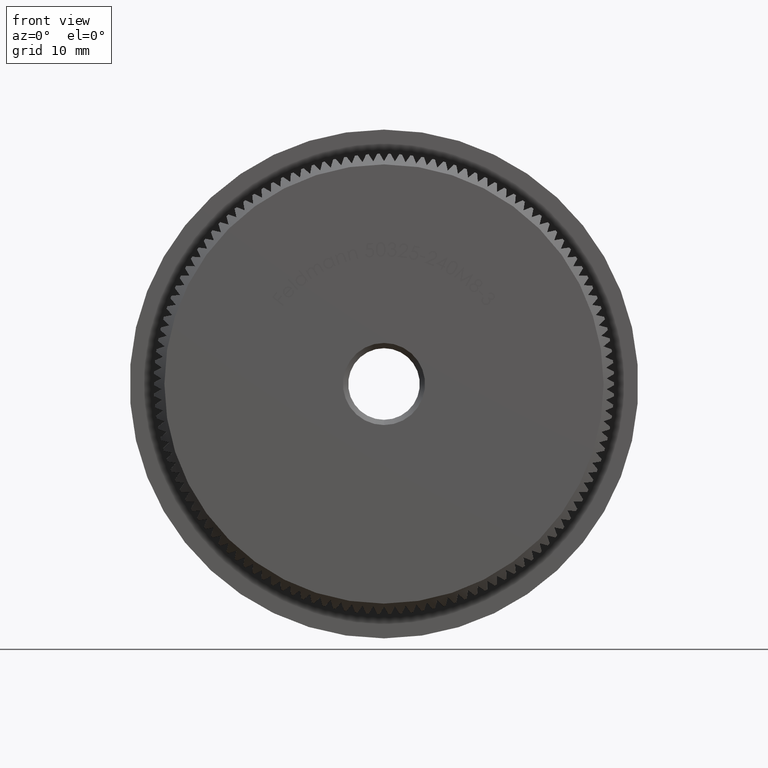
[diagram: clean part render]
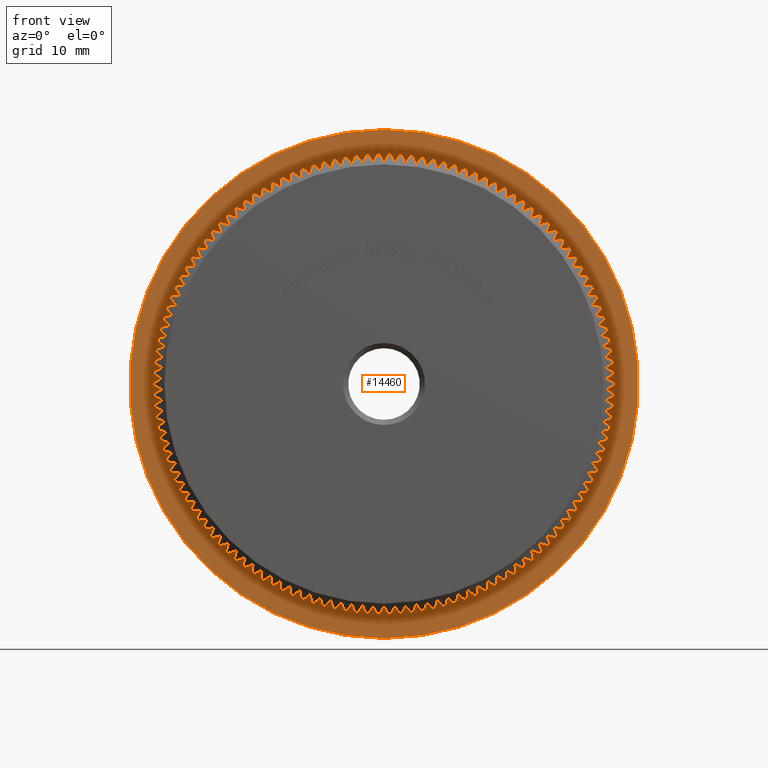
[diagram: same view with one face highlighted and labeled with its STEP entity id]
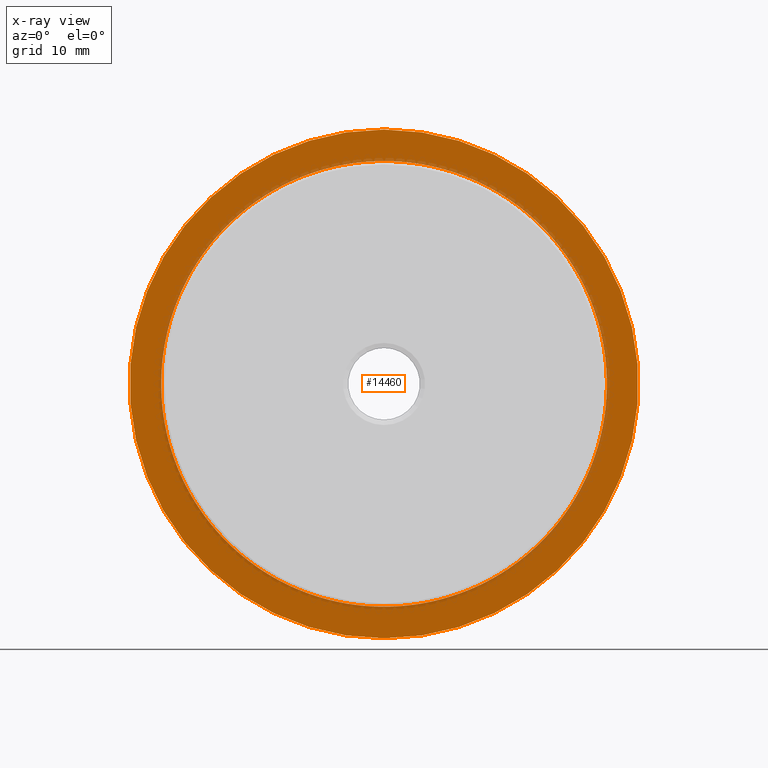
[diagram: x-ray of the same camera — body ghosted, the highlighted face saturated]
A machine part, front view. The second image highlights one B-rep face of the part: STEP entity #14460.
The next image is the same camera in x-ray: the body ghosted, the highlighted face saturated — about 8% of this face is hidden behind the body in this view.
In plain terms, the highlighted planar face has unit normal (0, -1, -0).
Its self-contained STEP definition (entity closure, byte-faithful):
#51 = CARTESIAN_POINT ( 'NONE',  ( 0.0000000000000000000, 8.000000000000001800, 0.0000000000000000000 ) ) ;
#53 = DIRECTION ( 'NONE',  ( 0.0000000000000000000, 0.0000000000000000000, -1.000000000000000000 ) ) ;
#55 = CIRCLE ( 'NONE', #1853, 21.15000000000000200 ) ;
#75 = ORIENTED_EDGE ( 'NONE', *, *, #10970, .F. ) ;
#105 = CARTESIAN_POINT ( 'NONE',  ( 10.72220090815758600, 7.999999999999998200, -18.23065845451295900 ) ) ;
#121 = CARTESIAN_POINT ( 'NONE',  ( 0.0000000000000000000, 8.000000000000001800, 0.0000000000000000000 ) ) ;
#124 = ORIENTED_EDGE ( 'NONE', *, *, #28398, .F. ) ;
#134 = DIRECTION ( 'NONE',  ( -0.0000000000000000000, -1.000000000000000000, -0.0000000000000000000 ) ) ;
#164 = ORIENTED_EDGE ( 'NONE', *, *, #2384, .F. ) ;
#239 = CARTESIAN_POINT ( 'NONE',  ( 18.95942972380422400, 7.999999999999998200, -9.373501189423779000 ) ) ;
#341 = CIRCLE ( 'NONE', #3102, 21.15000000000000200 ) ;
#345 = ORIENTED_EDGE ( 'NONE', *, *, #30596, .F. ) ;
#408 = EDGE_CURVE ( 'NONE', #31701, #14434, #3876, .T. ) ;
#415 = ORIENTED_EDGE ( 'NONE', *, *, #31161, .F. ) ;
#443 = DIRECTION ( 'NONE',  ( 0.0000000000000000000, 0.0000000000000000000, -1.000000000000000000 ) ) ;
#446 = AXIS2_PLACEMENT_3D ( 'NONE', #25768, #9098, #1819 ) ;
#451 = CIRCLE ( 'NONE', #13591, 21.15000000000000200 ) ;
#555 = VERTEX_POINT ( 'NONE', #1087 ) ;
#600 = CIRCLE ( 'NONE', #26574, 21.15000000000000200 ) ;
#657 = DIRECTION ( 'NONE',  ( -0.0000000000000000000, -1.000000000000000000, -0.0000000000000000000 ) ) ;
#681 = AXIS2_PLACEMENT_3D ( 'NONE', #4779, #2254, #7536 ) ;
#765 = ORIENTED_EDGE ( 'NONE', *, *, #22091, .F. ) ;
#767 = DIRECTION ( 'NONE',  ( -0.0000000000000000000, -1.000000000000000000, -0.0000000000000000000 ) ) ;
#849 = EDGE_CURVE ( 'NONE', #15362, #8026, #28735, .T. ) ;
#883 = VERTEX_POINT ( 'NONE', #20495 ) ;
#905 = VERTEX_POINT ( 'NONE', #5288 ) ;
#944 = VERTEX_POINT ( 'NONE', #18736 ) ;
#953 = CIRCLE ( 'NONE', #23175, 21.15000000000000200 ) ;
#1065 = CARTESIAN_POINT ( 'NONE',  ( 0.0000000000000000000, 8.000000000000001800, 0.0000000000000000000 ) ) ;
#1087 = CARTESIAN_POINT ( 'NONE',  ( 2.041269427342147200, 7.999999999999998200, -21.05126407427825800 ) ) ;
#1118 = ORIENTED_EDGE ( 'NONE', *, *, #13182, .F. ) ;
#1121 = AXIS2_PLACEMENT_3D ( 'NONE', #25112, #30086, #2748 ) ;
#1125 = DIRECTION ( 'NONE',  ( 0.0000000000000000000, 0.0000000000000000000, -1.000000000000000000 ) ) ;
#1164 = DIRECTION ( 'NONE',  ( 0.0000000000000000000, 0.0000000000000000000, -1.000000000000000000 ) ) ;
#1175 = EDGE_CURVE ( 'NONE', #25217, #19216, #3248, .T. ) ;
#1207 = ORIENTED_EDGE ( 'NONE', *, *, #28497, .F. ) ;
#1223 = AXIS2_PLACEMENT_3D ( 'NONE', #51, #4781, #2585 ) ;
#1256 = VERTEX_POINT ( 'NONE', #27299 ) ;
#1289 = EDGE_CURVE ( 'NONE', #12976, #8506, #4814, .T. ) ;
#1298 = ORIENTED_EDGE ( 'NONE', *, *, #9582, .F. ) ;
#1394 = CARTESIAN_POINT ( 'NONE',  ( 0.0000000000000000000, 8.000000000000001800, 0.0000000000000000000 ) ) ;
#1426 = EDGE_CURVE ( 'NONE', #11727, #11817, #11096, .T. ) ;
#1496 = AXIS2_PLACEMENT_3D ( 'NONE', #1065, #28725, #13589 ) ;
#1551 = DIRECTION ( 'NONE',  ( -0.0000000000000000000, -1.000000000000000000, -0.0000000000000000000 ) ) ;
#1554 = DIRECTION ( 'NONE',  ( 0.0000000000000000000, 0.0000000000000000000, -1.000000000000000000 ) ) ;
#1614 = VERTEX_POINT ( 'NONE', #19577 ) ;
#1649 = CARTESIAN_POINT ( 'NONE',  ( 0.0000000000000000000, 8.000000000000001800, 0.0000000000000000000 ) ) ;
#1656 = EDGE_CURVE ( 'NONE', #22135, #17678, #17036, .T. ) ;
#1657 = VERTEX_POINT ( 'NONE', #29781 ) ;
#1677 = ORIENTED_EDGE ( 'NONE', *, *, #29761, .F. ) ;
#1679 = ORIENTED_EDGE ( 'NONE', *, *, #17525, .F. ) ;
#1685 = EDGE_CURVE ( 'NONE', #27749, #28188, #31216, .T. ) ;
#1725 = CIRCLE ( 'NONE', #20686, 21.15000000000000200 ) ;
#1765 = DIRECTION ( 'NONE',  ( 0.0000000000000000000, 0.0000000000000000000, -1.000000000000000000 ) ) ;
#1774 = CARTESIAN_POINT ( 'NONE',  ( 6.047751098132011700, 8.000000000000005300, 20.26689928565894400 ) ) ;
#1796 = CARTESIAN_POINT ( 'NONE',  ( 0.0000000000000000000, 8.000000000000001800, 0.0000000000000000000 ) ) ;
#1801 = DIRECTION ( 'NONE',  ( -0.0000000000000000000, -1.000000000000000000, -0.0000000000000000000 ) ) ;
#1809 = CIRCLE ( 'NONE', #3151, 21.15000000000000200 ) ;
#1810 = EDGE_CURVE ( 'NONE', #8504, #21653, #4784, .T. ) ;
#1819 = DIRECTION ( 'NONE',  ( 0.0000000000000000000, 0.0000000000000000000, -1.000000000000000000 ) ) ;
#1853 = AXIS2_PLACEMENT_3D ( 'NONE', #4643, #14664, #4977 ) ;
#1875 = CARTESIAN_POINT ( 'NONE',  ( 0.0000000000000000000, 8.000000000000001800, 0.0000000000000000000 ) ) ;
#1897 = EDGE_CURVE ( 'NONE', #15260, #7297, #451, .T. ) ;
#1907 = CIRCLE ( 'NONE', #18878, 21.15000000000000200 ) ;
#1908 = VERTEX_POINT ( 'NONE', #2779 ) ;
#1959 = DIRECTION ( 'NONE',  ( -0.0000000000000000000, -1.000000000000000000, -0.0000000000000000000 ) ) ;
#2013 = CARTESIAN_POINT ( 'NONE',  ( 0.0000000000000000000, 8.000000000000001800, 0.0000000000000000000 ) ) ;
#2045 = CARTESIAN_POINT ( 'NONE',  ( -19.39015493094574800, 7.999999999999983100, 8.446560942414414800 ) ) ;
#2051 = CIRCLE ( 'NONE', #446, 21.15000000000000200 ) ;
#2081 = VERTEX_POINT ( 'NONE', #6506 ) ;
#2083 = DIRECTION ( 'NONE',  ( -0.0000000000000000000, -1.000000000000000000, -0.0000000000000000000 ) ) ;
#2084 = DIRECTION ( 'NONE',  ( 0.0000000000000000000, 0.0000000000000000000, -1.000000000000000000 ) ) ;
#2089 = AXIS2_PLACEMENT_3D ( 'NONE', #29812, #14705, #32344 ) ;
#2094 = DIRECTION ( 'NONE',  ( 0.0000000000000000000, 0.0000000000000000000, -1.000000000000000000 ) ) ;
#2136 = DIRECTION ( 'NONE',  ( -0.0000000000000000000, -1.000000000000000000, -0.0000000000000000000 ) ) ;
#2161 = AXIS2_PLACEMENT_3D ( 'NONE', #11323, #16102, #8936 ) ;
#2254 = DIRECTION ( 'NONE',  ( -0.0000000000000000000, -1.000000000000000000, -0.0000000000000000000 ) ) ;
#2275 = CIRCLE ( 'NONE', #26513, 21.15000000000000200 ) ;
#2296 = CARTESIAN_POINT ( 'NONE',  ( -3.055943398389038300, 7.999999999999994700, 20.92806034838973500 ) ) ;
#2333 = CARTESIAN_POINT ( 'NONE',  ( 0.0000000000000000000, 8.000000000000001800, 0.0000000000000000000 ) ) ;
#2381 = EDGE_CURVE ( 'NONE', #20567, #28108, #24076, .T. ) ;
#2384 = EDGE_CURVE ( 'NONE', #2081, #31263, #23287, .T. ) ;
#2396 = CARTESIAN_POINT ( 'NONE',  ( 0.0000000000000000000, 8.000000000000001800, 0.0000000000000000000 ) ) ;
#2397 = ORIENTED_EDGE ( 'NONE', *, *, #32477, .F. ) ;
#2413 = AXIS2_PLACEMENT_3D ( 'NONE', #2333, #10259, #7833 ) ;
#2421 = CARTESIAN_POINT ( 'NONE',  ( 0.0000000000000000000, 8.000000000000001800, 0.0000000000000000000 ) ) ;
#2476 = AXIS2_PLACEMENT_3D ( 'NONE', #14639, #24767, #2094 ) ;
#2498 = DIRECTION ( 'NONE',  ( -0.0000000000000000000, -1.000000000000000000, -0.0000000000000000000 ) ) ;
#2500 = DIRECTION ( 'NONE',  ( 0.0000000000000000000, 0.0000000000000000000, -1.000000000000000000 ) ) ;
#2537 = CARTESIAN_POINT ( 'NONE',  ( 0.0000000000000000000, 8.000000000000001800, 0.0000000000000000000 ) ) ;
#2546 = ORIENTED_EDGE ( 'NONE', *, *, #17577, .F. ) ;
#2550 = ORIENTED_EDGE ( 'NONE', *, *, #18432, .F. ) ;
#2581 = ORIENTED_EDGE ( 'NONE', *, *, #30996, .F. ) ;
#2585 = DIRECTION ( 'NONE',  ( 0.0000000000000000000, 0.0000000000000000000, -1.000000000000000000 ) ) ;
#2612 = PLANE ( 'NONE',  #18217 ) ;
#2656 = VERTEX_POINT ( 'NONE', #27303 ) ;
#2692 = EDGE_CURVE ( 'NONE', #22164, #11700, #11510, .T. ) ;
#2748 = DIRECTION ( 'NONE',  ( 0.0000000000000000000, 0.0000000000000000000, -1.000000000000000000 ) ) ;
#2764 = DIRECTION ( 'NONE',  ( -0.0000000000000000000, -1.000000000000000000, -0.0000000000000000000 ) ) ;
#2779 = CARTESIAN_POINT ( 'NONE',  ( 1.021827976964182500, 7.999999999999994700, 21.12530159750372500 ) ) ;
#2847 = CIRCLE ( 'NONE', #24461, 21.15000000000000200 ) ;
#2858 = CARTESIAN_POINT ( 'NONE',  ( 0.0000000000000000000, 8.000000000000001800, 0.0000000000000000000 ) ) ;
#2893 = CARTESIAN_POINT ( 'NONE',  ( 0.0000000000000000000, 8.000000000000001800, 0.0000000000000000000 ) ) ;
#2915 = AXIS2_PLACEMENT_3D ( 'NONE', #8321, #15706, #23192 ) ;
#2926 = EDGE_CURVE ( 'NONE', #17301, #1256, #14645, .T. ) ;
#2953 = DIRECTION ( 'NONE',  ( 0.0000000000000000000, 0.0000000000000000000, -1.000000000000000000 ) ) ;
#2956 = CARTESIAN_POINT ( 'NONE',  ( -2.041269427341999300, 8.000000000000001800, 21.05126407427827200 ) ) ;
#2958 = AXIS2_PLACEMENT_3D ( 'NONE', #31154, #26074, #31048 ) ;
#2981 = ORIENTED_EDGE ( 'NONE', *, *, #14420, .F. ) ;
#2986 = ORIENTED_EDGE ( 'NONE', *, *, #17673, .F. ) ;
#2991 = VERTEX_POINT ( 'NONE', #31157 ) ;
#3010 = CARTESIAN_POINT ( 'NONE',  ( -20.40711795321613300, 7.999999999999998200, 5.556261048900053000 ) ) ;
#3060 = DIRECTION ( 'NONE',  ( 0.0000000000000000000, 0.0000000000000000000, -1.000000000000000000 ) ) ;
#3098 = EDGE_CURVE ( 'NONE', #25714, #15805, #20987, .T. ) ;
#3102 = AXIS2_PLACEMENT_3D ( 'NONE', #2893, #7848, #8282 ) ;
#3119 = VERTEX_POINT ( 'NONE', #10555 ) ;
#3151 = AXIS2_PLACEMENT_3D ( 'NONE', #13812, #18944, #16501 ) ;
#3157 = AXIS2_PLACEMENT_3D ( 'NONE', #4631, #27553, #27448 ) ;
#3173 = CARTESIAN_POINT ( 'NONE',  ( 0.0000000000000000000, 8.000000000000001800, 0.0000000000000000000 ) ) ;
#3219 = AXIS2_PLACEMENT_3D ( 'NONE', #28622, #11075, #21331 ) ;
#3248 = CIRCLE ( 'NONE', #32411, 21.15000000000000200 ) ;
#3249 = AXIS2_PLACEMENT_3D ( 'NONE', #2421, #12765, #4967 ) ;
#3269 = EDGE_CURVE ( 'NONE', #2991, #10141, #17835, .T. ) ;
#3302 = EDGE_CURVE ( 'NONE', #11916, #27868, #7576, .T. ) ;
#3315 = DIRECTION ( 'NONE',  ( -0.0000000000000000000, -1.000000000000000000, -0.0000000000000000000 ) ) ;
#3366 = EDGE_CURVE ( 'NONE', #17878, #13063, #28828, .T. ) ;
#3370 = EDGE_CURVE ( 'NONE', #25075, #14355, #24462, .T. ) ;
#3374 = VERTEX_POINT ( 'NONE', #24206 ) ;
#3382 = ORIENTED_EDGE ( 'NONE', *, *, #23798, .F. ) ;
#3405 = CARTESIAN_POINT ( 'NONE',  ( 0.0000000000000000000, 8.000000000000001800, 0.0000000000000000000 ) ) ;
#3415 = DIRECTION ( 'NONE',  ( -0.0000000000000000000, -1.000000000000000000, -0.0000000000000000000 ) ) ;
#3463 = CARTESIAN_POINT ( 'NONE',  ( -7.975555901707995300, 8.000000000000001800, 19.58859382545696800 ) ) ;
#3470 = EDGE_CURVE ( 'NONE', #6738, #12301, #5953, .T. ) ;
#3489 = DIRECTION ( 'NONE',  ( 0.0000000000000000000, 0.0000000000000000000, -1.000000000000000000 ) ) ;
#3496 = EDGE_CURVE ( 'NONE', #944, #8504, #15820, .T. ) ;
#3539 = CARTESIAN_POINT ( 'NONE',  ( 0.0000000000000000000, 8.000000000000001800, 0.0000000000000000000 ) ) ;
#3560 = CARTESIAN_POINT ( 'NONE',  ( 17.96624682782027100, 7.999999999999998200, -11.15959116284454700 ) ) ;
#3629 = ORIENTED_EDGE ( 'NONE', *, *, #408, .F. ) ;
#3631 = CARTESIAN_POINT ( 'NONE',  ( -21.14382449779608600, 8.000000000000005300, 0.5110632117441256100 ) ) ;
#3646 = CARTESIAN_POINT ( 'NONE',  ( 18.48442389005073800, 7.999999999999994700, 10.27854919008134100 ) ) ;
#3657 = AXIS2_PLACEMENT_3D ( 'NONE', #1796, #21954, #6866 ) ;
#3667 = ORIENTED_EDGE ( 'NONE', *, *, #30511, .F. ) ;
#3725 = AXIS2_PLACEMENT_3D ( 'NONE', #16741, #1959, #6818 ) ;
#3797 = EDGE_CURVE ( 'NONE', #16465, #20567, #31982, .T. ) ;
#3831 = DIRECTION ( 'NONE',  ( 0.0000000000000000000, 0.0000000000000000000, -1.000000000000000000 ) ) ;
#3876 = CIRCLE ( 'NONE', #30470, 21.15000000000000200 ) ;
#3883 = CIRCLE ( 'NONE', #29830, 21.15000000000000200 ) ;
#3901 = DIRECTION ( 'NONE',  ( -0.0000000000000000000, -1.000000000000000000, -0.0000000000000000000 ) ) ;
#3960 = EDGE_CURVE ( 'NONE', #18366, #8717, #55, .T. ) ;
#3990 = EDGE_CURVE ( 'NONE', #7297, #18691, #23294, .T. ) ;
#4074 = AXIS2_PLACEMENT_3D ( 'NONE', #11352, #31430, #23804 ) ;
#4088 = CARTESIAN_POINT ( 'NONE',  ( -4.063480072030942300, 7.999999999999994700, 20.75597816784859600 ) ) ;
#4104 = CARTESIAN_POINT ( 'NONE',  ( -5.061526299681717400, 8.000000000000005300, -20.53541943856103600 ) ) ;
#4122 = DIRECTION ( 'NONE',  ( 0.0000000000000000000, 0.0000000000000000000, -1.000000000000000000 ) ) ;
#4124 = AXIS2_PLACEMENT_3D ( 'NONE', #2858, #5073, #12434 ) ;
#4203 = ORIENTED_EDGE ( 'NONE', *, *, #12240, .F. ) ;
#4259 = CARTESIAN_POINT ( 'NONE',  ( 0.0000000000000000000, 8.000000000000001800, 0.0000000000000000000 ) ) ;
#4263 = ORIENTED_EDGE ( 'NONE', *, *, #23297, .F. ) ;
#4271 = AXIS2_PLACEMENT_3D ( 'NONE', #22347, #4819, #32487 ) ;
#4307 = ORIENTED_EDGE ( 'NONE', *, *, #30969, .F. ) ;
#4327 = CARTESIAN_POINT ( 'NONE',  ( -1.021827976964330400, 7.999999999999998200, -21.12530159750371800 ) ) ;
#4339 = CARTESIAN_POINT ( 'NONE',  ( -12.43165808598571200, 8.000000000000005300, -17.11070943103020900 ) ) ;
#4370 = ORIENTED_EDGE ( 'NONE', *, *, #3496, .F. ) ;
#4412 = AXIS2_PLACEMENT_3D ( 'NONE', #31233, #3901, #28598 ) ;
#4487 = DIRECTION ( 'NONE',  ( -0.0000000000000000000, -1.000000000000000000, -0.0000000000000000000 ) ) ;
#4498 = ORIENTED_EDGE ( 'NONE', *, *, #14910, .F. ) ;
#4502 = VERTEX_POINT ( 'NONE', #3010 ) ;
#4507 = DIRECTION ( 'NONE',  ( 0.0000000000000000000, 0.0000000000000000000, -1.000000000000000000 ) ) ;
#4511 = ORIENTED_EDGE ( 'NONE', *, *, #10756, .F. ) ;
#4516 = EDGE_CURVE ( 'NONE', #32056, #22135, #18568, .T. ) ;
#4522 = CARTESIAN_POINT ( 'NONE',  ( -18.48442389005081000, 8.000000000000001800, -10.27854919008120200 ) ) ;
#4552 = AXIS2_PLACEMENT_3D ( 'NONE', #14447, #11811, #29455 ) ;
#4603 = AXIS2_PLACEMENT_3D ( 'NONE', #21807, #31942, #6710 ) ;
#4610 = DIRECTION ( 'NONE',  ( 0.0000000000000000000, 0.0000000000000000000, -1.000000000000000000 ) ) ;
#4612 = DIRECTION ( 'NONE',  ( -0.0000000000000000000, -1.000000000000000000, -0.0000000000000000000 ) ) ;
#4631 = CARTESIAN_POINT ( 'NONE',  ( 0.0000000000000000000, 8.000000000000001800, 0.0000000000000000000 ) ) ;
#4643 = CARTESIAN_POINT ( 'NONE',  ( 0.0000000000000000000, 8.000000000000001800, 0.0000000000000000000 ) ) ;
#4655 = VERTEX_POINT ( 'NONE', #9064 ) ;
#4659 = EDGE_CURVE ( 'NONE', #19216, #13142, #20546, .T. ) ;
#4662 = DIRECTION ( 'NONE',  ( 0.0000000000000000000, 0.0000000000000000000, -1.000000000000000000 ) ) ;
#4693 = DIRECTION ( 'NONE',  ( 0.0000000000000000000, 0.0000000000000000000, -1.000000000000000000 ) ) ;
#4779 = CARTESIAN_POINT ( 'NONE',  ( 0.0000000000000000000, 8.000000000000001800, 0.0000000000000000000 ) ) ;
#4781 = DIRECTION ( 'NONE',  ( -0.0000000000000000000, -1.000000000000000000, -0.0000000000000000000 ) ) ;
#4784 = CIRCLE ( 'NONE', #23734, 21.15000000000000200 ) ;
#4798 = CIRCLE ( 'NONE', #10387, 21.15000000000000200 ) ;
#4807 = DIRECTION ( 'NONE',  ( 0.0000000000000000000, 0.0000000000000000000, -1.000000000000000000 ) ) ;
#4814 = CIRCLE ( 'NONE', #12550, 21.15000000000000200 ) ;
#4819 = DIRECTION ( 'NONE',  ( -0.0000000000000000000, -1.000000000000000000, -0.0000000000000000000 ) ) ;
#4837 = VERTEX_POINT ( 'NONE', #8903 ) ;
#4860 = EDGE_CURVE ( 'NONE', #15419, #27388, #10257, .T. ) ;
#4947 = VERTEX_POINT ( 'NONE', #30146 ) ;
#4961 = VERTEX_POINT ( 'NONE', #27618 ) ;
#4967 = DIRECTION ( 'NONE',  ( 0.0000000000000000000, 0.0000000000000000000, -1.000000000000000000 ) ) ;
#4977 = DIRECTION ( 'NONE',  ( 0.0000000000000000000, 0.0000000000000000000, -1.000000000000000000 ) ) ;
#4982 = VERTEX_POINT ( 'NONE', #11057 ) ;
#4998 = AXIS2_PLACEMENT_3D ( 'NONE', #10008, #4612, #12521 ) ;
#5049 = CARTESIAN_POINT ( 'NONE',  ( -15.48748229854294100, 7.999999999999994700, 14.40348541334073400 ) ) ;
#5073 = DIRECTION ( 'NONE',  ( -0.0000000000000000000, -1.000000000000000000, -0.0000000000000000000 ) ) ;
#5142 = AXIS2_PLACEMENT_3D ( 'NONE', #11380, #28934, #26275 ) ;
#5147 = DIRECTION ( 'NONE',  ( -0.0000000000000000000, -1.000000000000000000, -0.0000000000000000000 ) ) ;
#5179 = ORIENTED_EDGE ( 'NONE', *, *, #17908, .F. ) ;
#5205 = DIRECTION ( 'NONE',  ( 0.0000000000000000000, 0.0000000000000000000, -1.000000000000000000 ) ) ;
#5221 = CARTESIAN_POINT ( 'NONE',  ( -10.72220090815745900, 7.999999999999998200, 18.23065845451303000 ) ) ;
#5232 = EDGE_CURVE ( 'NONE', #24949, #29165, #18150, .T. ) ;
#5259 = DIRECTION ( 'NONE',  ( -0.0000000000000000000, -1.000000000000000000, -0.0000000000000000000 ) ) ;
#5278 = ORIENTED_EDGE ( 'NONE', *, *, #22069, .F. ) ;
#5279 = AXIS2_PLACEMENT_3D ( 'NONE', #3405, #8472, #16074 ) ;
#5288 = CARTESIAN_POINT ( 'NONE',  ( 14.02504422179263200, 8.000000000000005300, 15.83100232381895400 ) ) ;
#5313 = CARTESIAN_POINT ( 'NONE',  ( 19.39015493094562400, 8.000000000000001800, 8.446560942414686600 ) ) ;
#5344 = CIRCLE ( 'NONE', #25097, 21.15000000000000200 ) ;
#5349 = DIRECTION ( 'NONE',  ( -0.0000000000000000000, -1.000000000000000000, -0.0000000000000000000 ) ) ;
#5365 = ORIENTED_EDGE ( 'NONE', *, *, #18531, .F. ) ;
#5371 = CARTESIAN_POINT ( 'NONE',  ( 20.99579268717382200, 7.999999999999991100, 2.549350787400310300 ) ) ;
#5447 = CIRCLE ( 'NONE', #26485, 21.15000000000000200 ) ;
#5487 = VERTEX_POINT ( 'NONE', #14300 ) ;
#5506 = DIRECTION ( 'NONE',  ( 0.0000000000000000000, 0.0000000000000000000, -1.000000000000000000 ) ) ;
#5533 = VERTEX_POINT ( 'NONE', #31957 ) ;
#5534 = DIRECTION ( 'NONE',  ( -0.0000000000000000000, -1.000000000000000000, -0.0000000000000000000 ) ) ;
#5587 = ORIENTED_EDGE ( 'NONE', *, *, #9476, .F. ) ;
#5599 = CARTESIAN_POINT ( 'NONE',  ( 0.0000000000000000000, 8.000000000000001800, 0.0000000000000000000 ) ) ;
#5650 = CARTESIAN_POINT ( 'NONE',  ( 0.0000000000000000000, 8.000000000000001800, 0.0000000000000000000 ) ) ;
#5654 = DIRECTION ( 'NONE',  ( -0.0000000000000000000, -1.000000000000000000, -0.0000000000000000000 ) ) ;
#5666 = CIRCLE ( 'NONE', #9911, 21.15000000000000200 ) ;
#5682 = DIRECTION ( 'NONE',  ( -0.0000000000000000000, -1.000000000000000000, -0.0000000000000000000 ) ) ;
#5745 = CIRCLE ( 'NONE', #11772, 21.15000000000000200 ) ;
#5787 = DIRECTION ( 'NONE',  ( -0.0000000000000000000, -1.000000000000000000, -0.0000000000000000000 ) ) ;
#5788 = CARTESIAN_POINT ( 'NONE',  ( 0.0000000000000000000, 8.000000000000001800, 0.0000000000000000000 ) ) ;
#5799 = VERTEX_POINT ( 'NONE', #14045 ) ;
#5808 = DIRECTION ( 'NONE',  ( -0.0000000000000000000, -1.000000000000000000, -0.0000000000000000000 ) ) ;
#5832 = ORIENTED_EDGE ( 'NONE', *, *, #1685, .F. ) ;
#5848 = AXIS2_PLACEMENT_3D ( 'NONE', #12203, #29855, #19971 ) ;
#5894 = CARTESIAN_POINT ( 'NONE',  ( 0.0000000000000000000, 8.000000000000001800, 0.0000000000000000000 ) ) ;
#5944 = CARTESIAN_POINT ( 'NONE',  ( 0.0000000000000000000, 8.000000000000001800, 0.0000000000000000000 ) ) ;
#5953 = CIRCLE ( 'NONE', #4998, 21.15000000000000200 ) ;
#5964 = CIRCLE ( 'NONE', #4271, 21.15000000000000200 ) ;
#6045 = EDGE_CURVE ( 'NONE', #21644, #23260, #25999, .T. ) ;
#6060 = CARTESIAN_POINT ( 'NONE',  ( -20.11484531964252300, 7.999999999999988500, 6.535709431030082500 ) ) ;
#6069 = EDGE_CURVE ( 'NONE', #25436, #5533, #19343, .T. ) ;
#6077 = CARTESIAN_POINT ( 'NONE',  ( -11.59046453055116800, 7.999999999999998200, -17.69134341891636500 ) ) ;
#6115 = CARTESIAN_POINT ( 'NONE',  ( -21.09444211597504200, 8.000000000000005300, 1.531996023421204700 ) ) ;
#6131 = CARTESIAN_POINT ( 'NONE',  ( 0.0000000000000000000, 8.000000000000001800, 0.0000000000000000000 ) ) ;
#6175 = DIRECTION ( 'NONE',  ( -0.0000000000000000000, -1.000000000000000000, -0.0000000000000000000 ) ) ;
#6218 = ORIENTED_EDGE ( 'NONE', *, *, #849, .F. ) ;
#6224 = CIRCLE ( 'NONE', #24766, 21.15000000000000200 ) ;
#6257 = CARTESIAN_POINT ( 'NONE',  ( 5.061526299681574400, 8.000000000000005300, 20.53541943856106800 ) ) ;
#6279 = AXIS2_PLACEMENT_3D ( 'NONE', #26990, #21219, #11825 ) ;
#6282 = AXIS2_PLACEMENT_3D ( 'NONE', #22346, #5147, #2500 ) ;
#6318 = EDGE_CURVE ( 'NONE', #14434, #14354, #341, .T. ) ;
#6328 = DIRECTION ( 'NONE',  ( -0.0000000000000000000, -1.000000000000000000, -0.0000000000000000000 ) ) ;
#6452 = VERTEX_POINT ( 'NONE', #21276 ) ;
#6464 = CARTESIAN_POINT ( 'NONE',  ( 11.59046453055105300, 8.000000000000005300, 17.69134341891644300 ) ) ;
#6506 = CARTESIAN_POINT ( 'NONE',  ( -13.24381692793535900, 8.000000000000001800, 16.49011258843713500 ) ) ;
#6528 = ORIENTED_EDGE ( 'NONE', *, *, #1426, .F. ) ;
#6607 = DIRECTION ( 'NONE',  ( 0.0000000000000000000, 0.0000000000000000000, -1.000000000000000000 ) ) ;
#6620 = DIRECTION ( 'NONE',  ( 0.0000000000000000000, 0.0000000000000000000, -1.000000000000000000 ) ) ;
#6656 = DIRECTION ( 'NONE',  ( -0.0000000000000000000, -1.000000000000000000, -0.0000000000000000000 ) ) ;
#6710 = DIRECTION ( 'NONE',  ( 0.0000000000000000000, 0.0000000000000000000, -1.000000000000000000 ) ) ;
#6731 = ORIENTED_EDGE ( 'NONE', *, *, #31655, .F. ) ;
#6738 = VERTEX_POINT ( 'NONE', #6077 ) ;
#6742 = CARTESIAN_POINT ( 'NONE',  ( -7.975555901707864800, 7.999999999999991100, -19.58859382545702800 ) ) ;
#6818 = DIRECTION ( 'NONE',  ( 0.0000000000000000000, 0.0000000000000000000, -1.000000000000000000 ) ) ;
#6850 = ORIENTED_EDGE ( 'NONE', *, *, #17116, .F. ) ;
#6866 = DIRECTION ( 'NONE',  ( 0.0000000000000000000, 0.0000000000000000000, -1.000000000000000000 ) ) ;
#6871 = ORIENTED_EDGE ( 'NONE', *, *, #28118, .F. ) ;
#6872 = CARTESIAN_POINT ( 'NONE',  ( 0.0000000000000000000, 8.000000000000001800, 0.0000000000000000000 ) ) ;
#6876 = CARTESIAN_POINT ( 'NONE',  ( 0.0000000000000000000, 8.000000000000001800, 0.0000000000000000000 ) ) ;
#6928 = CARTESIAN_POINT ( 'NONE',  ( 0.0000000000000000000, 8.000000000000001800, 0.0000000000000000000 ) ) ;
#6935 = DIRECTION ( 'NONE',  ( -0.0000000000000000000, -1.000000000000000000, -0.0000000000000000000 ) ) ;
#6963 = CARTESIAN_POINT ( 'NONE',  ( 0.0000000000000000000, 8.000000000000001800, 0.0000000000000000000 ) ) ;
#6980 = DIRECTION ( 'NONE',  ( -0.0000000000000000000, -1.000000000000000000, -0.0000000000000000000 ) ) ;
#6985 = CARTESIAN_POINT ( 'NONE',  ( 0.0000000000000000000, 8.000000000000001800, 0.0000000000000000000 ) ) ;
#6991 = EDGE_LOOP ( 'NONE', ( #8495, #4511, #1679, #20009, #23455, #5278, #24565, #10822, #19416, #1118, #9650, #75, #4263, #23581, #9967, #24089, #2986, #13631, #30999, #4498, #8172, #31108, #7294, #3667, #1298, #2581, #21767, #19977, #30438, #6871, #19592, #8405, #4307, #7973, #30484, #9291, #15545, #28444, #31736, #15252, #6850, #13460, #9420, #16288, #3382, #12271, #30264, #15425, #32214, #7130, #5587, #26097, #31516, #6731, #1207, #23662, #30461, #31734, #5179, #12574, #7889, #28052, #27676, #30156, #17495, #28580, #7418, #20007, #18585, #7763, #22204, #4203, #20584, #9118, #27619, #4370, #19061, #20848, #415, #19397, #22628, #27265, #31148, #5365, #6218, #24192, #765, #18864, #25261, #2397, #1677, #21862, #7258, #23463, #25717, #30100, #6528, #24862, #10637, #2546, #9667, #31834, #12936, #21375, #8858, #9141, #345, #30520, #16231, #16600, #22221, #30810, #16628, #3629, #20740, #29613, #164, #21669, #124, #31055, #2981, #11889, #5832, #17972, #2550, #27822, #28258, #21479, #24632, #32564 ) ) ;
#6998 = DIRECTION ( 'NONE',  ( 0.0000000000000000000, 0.0000000000000000000, -1.000000000000000000 ) ) ;
#7027 = CIRCLE ( 'NONE', #28804, 21.15000000000000200 ) ;
#7045 = CARTESIAN_POINT ( 'NONE',  ( 0.0000000000000000000, 8.000000000000001800, 0.0000000000000000000 ) ) ;
#7077 = CARTESIAN_POINT ( 'NONE',  ( -18.48442389005088100, 8.000000000000005300, 10.27854919008107800 ) ) ;
#7089 = CIRCLE ( 'NONE', #19934, 21.15000000000000200 ) ;
#7130 = ORIENTED_EDGE ( 'NONE', *, *, #25829, .F. ) ;
#7258 = ORIENTED_EDGE ( 'NONE', *, *, #21744, .F. ) ;
#7261 = CARTESIAN_POINT ( 'NONE',  ( -17.96624682782011800, 8.000000000000005300, -11.15959116284479100 ) ) ;
#7279 = CARTESIAN_POINT ( 'NONE',  ( 0.0000000000000000000, 8.000000000000001800, 0.0000000000000000000 ) ) ;
#7294 = ORIENTED_EDGE ( 'NONE', *, *, #2926, .F. ) ;
#7297 = VERTEX_POINT ( 'NONE', #11878 ) ;
#7342 = VERTEX_POINT ( 'NONE', #1774 ) ;
#7418 = ORIENTED_EDGE ( 'NONE', *, *, #20843, .F. ) ;
#7430 = DIRECTION ( 'NONE',  ( 0.0000000000000000000, 0.0000000000000000000, -1.000000000000000000 ) ) ;
#7437 = CIRCLE ( 'NONE', #1121, 21.15000000000000200 ) ;
#7479 = CARTESIAN_POINT ( 'NONE',  ( 0.0000000000000000000, 8.000000000000001800, 0.0000000000000000000 ) ) ;
#7536 = DIRECTION ( 'NONE',  ( 0.0000000000000000000, 0.0000000000000000000, -1.000000000000000000 ) ) ;
#7545 = AXIS2_PLACEMENT_3D ( 'NONE', #25700, #28236, #28344 ) ;
#7557 = CARTESIAN_POINT ( 'NONE',  ( -19.39015493094568000, 8.000000000000005300, -8.446560942414548000 ) ) ;
#7576 = CIRCLE ( 'NONE', #26959, 21.15000000000000200 ) ;
#7634 = VERTEX_POINT ( 'NONE', #25424 ) ;
#7734 = EDGE_CURVE ( 'NONE', #12301, #944, #22380, .T. ) ;
#7763 = ORIENTED_EDGE ( 'NONE', *, *, #10198, .F. ) ;
#7775 = AXIS2_PLACEMENT_3D ( 'NONE', #15516, #23215, #15394 ) ;
#7833 = DIRECTION ( 'NONE',  ( 0.0000000000000000000, 0.0000000000000000000, -1.000000000000000000 ) ) ;
#7848 = DIRECTION ( 'NONE',  ( -0.0000000000000000000, -1.000000000000000000, -0.0000000000000000000 ) ) ;
#7889 = ORIENTED_EDGE ( 'NONE', *, *, #3366, .F. ) ;
#7966 = DIRECTION ( 'NONE',  ( -0.0000000000000000000, -1.000000000000000000, -0.0000000000000000000 ) ) ;
#7973 = ORIENTED_EDGE ( 'NONE', *, *, #22356, .F. ) ;
#8026 = VERTEX_POINT ( 'NONE', #28484 ) ;
#8118 = DIRECTION ( 'NONE',  ( 0.0000000000000000000, 0.0000000000000000000, -1.000000000000000000 ) ) ;
#8127 = DIRECTION ( 'NONE',  ( 0.0000000000000000000, 0.0000000000000000000, -1.000000000000000000 ) ) ;
#8172 = ORIENTED_EDGE ( 'NONE', *, *, #9021, .F. ) ;
#8180 = DIRECTION ( 'NONE',  ( 0.0000000000000000000, 0.0000000000000000000, -1.000000000000000000 ) ) ;
#8227 = EDGE_CURVE ( 'NONE', #3374, #25436, #28676, .T. ) ;
#8279 = CARTESIAN_POINT ( 'NONE',  ( -17.40610876365086000, 8.000000000000014200, 12.01456939336390800 ) ) ;
#8282 = DIRECTION ( 'NONE',  ( 0.0000000000000000000, 0.0000000000000000000, -1.000000000000000000 ) ) ;
#8321 = CARTESIAN_POINT ( 'NONE',  ( 0.0000000000000000000, 8.000000000000001800, 0.0000000000000000000 ) ) ;
#8338 = CIRCLE ( 'NONE', #30237, 21.15000000000000200 ) ;
#8349 = CARTESIAN_POINT ( 'NONE',  ( 0.0000000000000000000, 8.000000000000001800, 0.0000000000000000000 ) ) ;
#8405 = ORIENTED_EDGE ( 'NONE', *, *, #28641, .F. ) ;
#8436 = CARTESIAN_POINT ( 'NONE',  ( 0.0000000000000000000, 8.000000000000001800, 0.0000000000000000000 ) ) ;
#8463 = VERTEX_POINT ( 'NONE', #8719 ) ;
#8472 = DIRECTION ( 'NONE',  ( -0.0000000000000000000, -1.000000000000000000, -0.0000000000000000000 ) ) ;
#8483 = DIRECTION ( 'NONE',  ( 0.0000000000000000000, 0.0000000000000000000, -1.000000000000000000 ) ) ;
#8495 = ORIENTED_EDGE ( 'NONE', *, *, #18053, .F. ) ;
#8504 = VERTEX_POINT ( 'NONE', #26572 ) ;
#8506 = VERTEX_POINT ( 'NONE', #4088 ) ;
#8540 = CIRCLE ( 'NONE', #16681, 21.15000000000000200 ) ;
#8564 = AXIS2_PLACEMENT_3D ( 'NONE', #15451, #7966, #30441 ) ;
#8659 = CARTESIAN_POINT ( 'NONE',  ( 20.84810661170438100, 8.000000000000001800, 3.560751424490094000 ) ) ;
#8666 = CIRCLE ( 'NONE', #2161, 21.15000000000000200 ) ;
#8680 = DIRECTION ( 'NONE',  ( -0.0000000000000000000, -1.000000000000000000, -0.0000000000000000000 ) ) ;
#8717 = VERTEX_POINT ( 'NONE', #14850 ) ;
#8719 = CARTESIAN_POINT ( 'NONE',  ( 11.59046453055141500, 8.000000000000005300, -17.69134341891620100 ) ) ;
#8759 = CIRCLE ( 'NONE', #11001, 21.15000000000000200 ) ;
#8798 = DIRECTION ( 'NONE',  ( -0.0000000000000000000, -1.000000000000000000, -0.0000000000000000000 ) ) ;
#8830 = EDGE_CURVE ( 'NONE', #7342, #20040, #27073, .T. ) ;
#8850 = CARTESIAN_POINT ( 'NONE',  ( -7.019851093668256300, 7.999999999999998200, -19.95104485040131300 ) ) ;
#8858 = ORIENTED_EDGE ( 'NONE', *, *, #11212, .F. ) ;
#8903 = CARTESIAN_POINT ( 'NONE',  ( -20.99579268717385000, 8.000000000000005300, 2.549350787400016700 ) ) ;
#8909 = VERTEX_POINT ( 'NONE', #16067 ) ;
#8927 = DIRECTION ( 'NONE',  ( -0.0000000000000000000, -1.000000000000000000, -0.0000000000000000000 ) ) ;
#8936 = DIRECTION ( 'NONE',  ( 0.0000000000000000000, 0.0000000000000000000, -1.000000000000000000 ) ) ;
#8972 = DIRECTION ( 'NONE',  ( 0.0000000000000000000, 0.0000000000000000000, -1.000000000000000000 ) ) ;
#8992 = AXIS2_PLACEMENT_3D ( 'NONE', #13544, #31093, #1125 ) ;
#9012 = CIRCLE ( 'NONE', #3249, 21.15000000000000200 ) ;
#9021 = EDGE_CURVE ( 'NONE', #24853, #30911, #8540, .T. ) ;
#9064 = CARTESIAN_POINT ( 'NONE',  ( 21.09444211597505300, 8.000000000000005300, -1.531996023421057500 ) ) ;
#9066 = EDGE_CURVE ( 'NONE', #8909, #22567, #29428, .T. ) ;
#9098 = DIRECTION ( 'NONE',  ( -0.0000000000000000000, -1.000000000000000000, -0.0000000000000000000 ) ) ;
#9112 = CIRCLE ( 'NONE', #26671, 21.15000000000000200 ) ;
#9118 = ORIENTED_EDGE ( 'NONE', *, *, #16691, .F. ) ;
#9141 = ORIENTED_EDGE ( 'NONE', *, *, #4860, .F. ) ;
#9291 = ORIENTED_EDGE ( 'NONE', *, *, #9839, .F. ) ;
#9305 = CARTESIAN_POINT ( 'NONE',  ( 14.02504422179295700, 7.999999999999998200, -15.83100232381866900 ) ) ;
#9347 = AXIS2_PLACEMENT_3D ( 'NONE', #9525, #12252, #12144 ) ;
#9371 = CARTESIAN_POINT ( 'NONE',  ( -8.912633429389009300, 8.000000000000005300, 19.18039273198903100 ) ) ;
#9377 = DIRECTION ( 'NONE',  ( 0.0000000000000000000, 0.0000000000000000000, -1.000000000000000000 ) ) ;
#9406 = CIRCLE ( 'NONE', #21199, 21.15000000000000200 ) ;
#9413 = EDGE_CURVE ( 'NONE', #5487, #11727, #1809, .T. ) ;
#9420 = ORIENTED_EDGE ( 'NONE', *, *, #2381, .F. ) ;
#9440 = VERTEX_POINT ( 'NONE', #11631 ) ;
#9451 = EDGE_LOOP ( 'NONE', ( #14435, #28436 ) ) ;
#9476 = EDGE_CURVE ( 'NONE', #10697, #27729, #5745, .T. ) ;
#9509 = DIRECTION ( 'NONE',  ( 0.0000000000000000000, 0.0000000000000000000, -1.000000000000000000 ) ) ;
#9515 = DIRECTION ( 'NONE',  ( 0.0000000000000000000, 0.0000000000000000000, -1.000000000000000000 ) ) ;
#9525 = CARTESIAN_POINT ( 'NONE',  ( 0.0000000000000000000, 8.000000000000000000, 0.0000000000000000000 ) ) ;
#9526 = CIRCLE ( 'NONE', #29364, 21.15000000000000200 ) ;
#9527 = CARTESIAN_POINT ( 'NONE',  ( 0.0000000000000000000, 8.000000000000001800, 0.0000000000000000000 ) ) ;
#9559 = CARTESIAN_POINT ( 'NONE',  ( 0.0000000000000000000, 8.000000000000001800, 0.0000000000000000000 ) ) ;
#9582 = EDGE_CURVE ( 'NONE', #17155, #25621, #16418, .T. ) ;
#9650 = ORIENTED_EDGE ( 'NONE', *, *, #3098, .F. ) ;
#9667 = ORIENTED_EDGE ( 'NONE', *, *, #24797, .F. ) ;
#9682 = CARTESIAN_POINT ( 'NONE',  ( -18.95942972380416000, 8.000000000000005300, 9.373501189423908600 ) ) ;
#9731 = EDGE_CURVE ( 'NONE', #1614, #11521, #18384, .T. ) ;
#9734 = VERTEX_POINT ( 'NONE', #6115 ) ;
#9751 = CIRCLE ( 'NONE', #18049, 21.15000000000000200 ) ;
#9775 = CIRCLE ( 'NONE', #29638, 21.15000000000000200 ) ;
#9817 = CARTESIAN_POINT ( 'NONE',  ( -19.77559353279654900, 7.999999999999998200, 7.499893360949577000 ) ) ;
#9839 = EDGE_CURVE ( 'NONE', #30005, #4655, #22319, .T. ) ;
#9870 = CIRCLE ( 'NONE', #4074, 21.15000000000000200 ) ;
#9911 = AXIS2_PLACEMENT_3D ( 'NONE', #23440, #3415, #8483 ) ;
#9940 = CIRCLE ( 'NONE', #2958, 21.15000000000000200 ) ;
#9967 = ORIENTED_EDGE ( 'NONE', *, *, #15590, .F. ) ;
#10008 = CARTESIAN_POINT ( 'NONE',  ( 0.0000000000000000000, 8.000000000000001800, 0.0000000000000000000 ) ) ;
#10082 = EDGE_CURVE ( 'NONE', #8506, #5799, #23836, .T. ) ;
#10108 = CARTESIAN_POINT ( 'NONE',  ( 0.0000000000000000000, 8.000000000000001800, 0.0000000000000000000 ) ) ;
#10141 = VERTEX_POINT ( 'NONE', #16620 ) ;
#10196 = DIRECTION ( 'NONE',  ( -0.0000000000000000000, -1.000000000000000000, -0.0000000000000000000 ) ) ;
#10198 = EDGE_CURVE ( 'NONE', #23260, #22247, #5344, .T. ) ;
#10230 = FACE_BOUND ( 'NONE', #6991, .T. ) ;
#10234 = AXIS2_PLACEMENT_3D ( 'NONE', #7279, #14972, #32618 ) ;
#10257 = CIRCLE ( 'NONE', #2915, 21.15000000000000200 ) ;
#10259 = DIRECTION ( 'NONE',  ( -0.0000000000000000000, -1.000000000000000000, -0.0000000000000000000 ) ) ;
#10286 = AXIS2_PLACEMENT_3D ( 'NONE', #30096, #14984, #25125 ) ;
#10333 = VERTEX_POINT ( 'NONE', #32474 ) ;
#10387 = AXIS2_PLACEMENT_3D ( 'NONE', #6872, #1801, #19126 ) ;
#10401 = EDGE_CURVE ( 'NONE', #4961, #883, #11619, .T. ) ;
#10463 = CARTESIAN_POINT ( 'NONE',  ( 3.055943398389186200, 7.999999999999991100, -20.92806034838971400 ) ) ;
#10476 = CARTESIAN_POINT ( 'NONE',  ( 21.14382449779607900, 8.000000000000005300, 0.5110632117444209300 ) ) ;
#10520 = CIRCLE ( 'NONE', #10835, 21.15000000000000200 ) ;
#10555 = CARTESIAN_POINT ( 'NONE',  ( 17.40610876365093800, 8.000000000000008900, -12.01456939336379500 ) ) ;
#10589 = AXIS2_PLACEMENT_3D ( 'NONE', #28074, #12850, #12952 ) ;
#10617 = VERTEX_POINT ( 'NONE', #24467 ) ;
#10637 = ORIENTED_EDGE ( 'NONE', *, *, #26154, .F. ) ;
#10643 = EDGE_CURVE ( 'NONE', #5799, #22099, #27389, .T. ) ;
#10656 = AXIS2_PLACEMENT_3D ( 'NONE', #11563, #24115, #1554 ) ;
#10670 = DIRECTION ( 'NONE',  ( 0.0000000000000000000, 0.0000000000000000000, -1.000000000000000000 ) ) ;
#10697 = VERTEX_POINT ( 'NONE', #9305 ) ;
#10756 = EDGE_CURVE ( 'NONE', #1908, #12213, #29744, .T. ) ;
#10760 = AXIS2_PLACEMENT_3D ( 'NONE', #24025, #14217, #8972 ) ;
#10766 = AXIS2_PLACEMENT_3D ( 'NONE', #2537, #27673, #22596 ) ;
#10822 = ORIENTED_EDGE ( 'NONE', *, *, #15078, .F. ) ;
#10829 = VERTEX_POINT ( 'NONE', #10476 ) ;
#10835 = AXIS2_PLACEMENT_3D ( 'NONE', #29728, #22349, #4610 ) ;
#10850 = DIRECTION ( 'NONE',  ( 0.0000000000000000000, 0.0000000000000000000, -1.000000000000000000 ) ) ;
#10855 = VERTEX_POINT ( 'NONE', #28545 ) ;
#10953 = CARTESIAN_POINT ( 'NONE',  ( 0.0000000000000000000, 8.000000000000001800, 0.0000000000000000000 ) ) ;
#10970 = EDGE_CURVE ( 'NONE', #21978, #25714, #12782, .T. ) ;
#11001 = AXIS2_PLACEMENT_3D ( 'NONE', #27159, #29897, #29791 ) ;
#11006 = CARTESIAN_POINT ( 'NONE',  ( 19.39015493094579800, 8.000000000000001800, -8.446560942414281600 ) ) ;
#11057 = CARTESIAN_POINT ( 'NONE',  ( -20.84810661170443100, 7.999999999999998200, 3.560751424489803500 ) ) ;
#11075 = DIRECTION ( 'NONE',  ( -0.0000000000000000000, -1.000000000000000000, -0.0000000000000000000 ) ) ;
#11096 = CIRCLE ( 'NONE', #15946, 21.15000000000000200 ) ;
#11181 = DIRECTION ( 'NONE',  ( 0.0000000000000000000, 0.0000000000000000000, -1.000000000000000000 ) ) ;
#11212 = EDGE_CURVE ( 'NONE', #27388, #4502, #32504, .T. ) ;
#11220 = VERTEX_POINT ( 'NONE', #2045 ) ;
#11323 = CARTESIAN_POINT ( 'NONE',  ( 0.0000000000000000000, 8.000000000000001800, 0.0000000000000000000 ) ) ;
#11324 = CARTESIAN_POINT ( 'NONE',  ( 19.77559353279643900, 8.000000000000001800, 7.499893360949857700 ) ) ;
#11352 = CARTESIAN_POINT ( 'NONE',  ( 0.0000000000000000000, 8.000000000000001800, 0.0000000000000000000 ) ) ;
#11362 = CIRCLE ( 'NONE', #3657, 21.15000000000000200 ) ;
#11374 = AXIS2_PLACEMENT_3D ( 'NONE', #22071, #6980, #9509 ) ;
#11380 = CARTESIAN_POINT ( 'NONE',  ( 0.0000000000000000000, 8.000000000000001800, 0.0000000000000000000 ) ) ;
#11510 = CIRCLE ( 'NONE', #8564, 21.15000000000000200 ) ;
#11521 = VERTEX_POINT ( 'NONE', #105 ) ;
#11546 = CARTESIAN_POINT ( 'NONE',  ( 0.0000000000000000000, 8.000000000000001800, 0.0000000000000000000 ) ) ;
#11563 = CARTESIAN_POINT ( 'NONE',  ( 0.0000000000000000000, 8.000000000000001800, 0.0000000000000000000 ) ) ;
#11582 = AXIS2_PLACEMENT_3D ( 'NONE', #12207, #17543, #14755 ) ;
#11619 = CIRCLE ( 'NONE', #14322, 21.15000000000000200 ) ;
#11631 = CARTESIAN_POINT ( 'NONE',  ( 20.11484531964256200, 8.000000000000005300, -6.535709431029945700 ) ) ;
#11700 = VERTEX_POINT ( 'NONE', #2956 ) ;
#11727 = VERTEX_POINT ( 'NONE', #30600 ) ;
#11728 = AXIS2_PLACEMENT_3D ( 'NONE', #121, #25546, #5506 ) ;
#11772 = AXIS2_PLACEMENT_3D ( 'NONE', #16610, #8680, #26291 ) ;
#11777 = AXIS2_PLACEMENT_3D ( 'NONE', #12323, #17429, #19981 ) ;
#11811 = DIRECTION ( 'NONE',  ( -0.0000000000000000000, -1.000000000000000000, -0.0000000000000000000 ) ) ;
#11817 = VERTEX_POINT ( 'NONE', #24066 ) ;
#11825 = DIRECTION ( 'NONE',  ( 0.0000000000000000000, 0.0000000000000000000, -1.000000000000000000 ) ) ;
#11878 = CARTESIAN_POINT ( 'NONE',  ( -14.02504422179273600, 8.000000000000005300, -15.83100232381886500 ) ) ;
#11889 = ORIENTED_EDGE ( 'NONE', *, *, #31303, .F. ) ;
#11916 = VERTEX_POINT ( 'NONE', #17169 ) ;
#11978 = VERTEX_POINT ( 'NONE', #7557 ) ;
#11980 = DIRECTION ( 'NONE',  ( -0.0000000000000000000, -1.000000000000000000, -0.0000000000000000000 ) ) ;
#12144 = DIRECTION ( 'NONE',  ( 0.0000000000000000000, 0.0000000000000000000, -1.000000000000000000 ) ) ;
#12203 = CARTESIAN_POINT ( 'NONE',  ( 0.0000000000000000000, 8.000000000000001800, 0.0000000000000000000 ) ) ;
#12207 = CARTESIAN_POINT ( 'NONE',  ( 0.0000000000000000000, 8.000000000000001800, 0.0000000000000000000 ) ) ;
#12213 = VERTEX_POINT ( 'NONE', #26490 ) ;
#12240 = EDGE_CURVE ( 'NONE', #29165, #21644, #12326, .T. ) ;
#12252 = DIRECTION ( 'NONE',  ( -0.0000000000000000000, -1.000000000000000000, -0.0000000000000000000 ) ) ;
#12258 = DIRECTION ( 'NONE',  ( 0.0000000000000000000, 0.0000000000000000000, -1.000000000000000000 ) ) ;
#12271 = ORIENTED_EDGE ( 'NONE', *, *, #12374, .F. ) ;
#12301 = VERTEX_POINT ( 'NONE', #29449 ) ;
#12323 = CARTESIAN_POINT ( 'NONE',  ( 0.0000000000000000000, 8.000000000000001800, 0.0000000000000000000 ) ) ;
#12326 = CIRCLE ( 'NONE', #10760, 21.15000000000000200 ) ;
#12341 = CARTESIAN_POINT ( 'NONE',  ( -7.019851093668391300, 8.000000000000001800, 19.95104485040126400 ) ) ;
#12374 = EDGE_CURVE ( 'NONE', #3119, #15135, #24142, .T. ) ;
#12411 = CIRCLE ( 'NONE', #6282, 21.15000000000000200 ) ;
#12434 = DIRECTION ( 'NONE',  ( 0.0000000000000000000, 0.0000000000000000000, -1.000000000000000000 ) ) ;
#12466 = CARTESIAN_POINT ( 'NONE',  ( 0.0000000000000000000, 8.000000000000001800, 0.0000000000000000000 ) ) ;
#12504 = CARTESIAN_POINT ( 'NONE',  ( 0.0000000000000000000, 8.000000000000001800, 0.0000000000000000000 ) ) ;
#12521 = DIRECTION ( 'NONE',  ( 0.0000000000000000000, 0.0000000000000000000, -1.000000000000000000 ) ) ;
#12550 = AXIS2_PLACEMENT_3D ( 'NONE', #20564, #15267, #17612 ) ;
#12574 = ORIENTED_EDGE ( 'NONE', *, *, #22668, .F. ) ;
#12602 = DIRECTION ( 'NONE',  ( -0.0000000000000000000, -1.000000000000000000, -0.0000000000000000000 ) ) ;
#12623 = CARTESIAN_POINT ( 'NONE',  ( -15.48748229854283700, 8.000000000000005300, -14.40348541334084100 ) ) ;
#12709 = DIRECTION ( 'NONE',  ( -0.0000000000000000000, -1.000000000000000000, -0.0000000000000000000 ) ) ;
#12744 = CARTESIAN_POINT ( 'NONE',  ( 20.11484531964242700, 8.000000000000001800, 6.535709431030367600 ) ) ;
#12765 = DIRECTION ( 'NONE',  ( -0.0000000000000000000, -1.000000000000000000, -0.0000000000000000000 ) ) ;
#12782 = CIRCLE ( 'NONE', #13066, 21.15000000000000200 ) ;
#12850 = DIRECTION ( 'NONE',  ( -0.0000000000000000000, -1.000000000000000000, -0.0000000000000000000 ) ) ;
#12886 = CIRCLE ( 'NONE', #20387, 21.15000000000000200 ) ;
#12897 = EDGE_CURVE ( 'NONE', #1256, #24853, #31631, .T. ) ;
#12909 = CARTESIAN_POINT ( 'NONE',  ( 9.828895088725468900, 8.000000000000001800, 18.72739494256551800 ) ) ;
#12913 = CARTESIAN_POINT ( 'NONE',  ( 17.40610876365068900, 8.000000000000005300, 12.01456939336415900 ) ) ;
#12936 = ORIENTED_EDGE ( 'NONE', *, *, #25364, .F. ) ;
#12952 = DIRECTION ( 'NONE',  ( 0.0000000000000000000, 0.0000000000000000000, -1.000000000000000000 ) ) ;
#12956 = VERTEX_POINT ( 'NONE', #17415 ) ;
#12973 = VERTEX_POINT ( 'NONE', #27429 ) ;
#12976 = VERTEX_POINT ( 'NONE', #2296 ) ;
#12992 = EDGE_CURVE ( 'NONE', #4947, #31701, #24882, .T. ) ;
#13031 = CARTESIAN_POINT ( 'NONE',  ( 0.0000000000000000000, 8.000000000000001800, 0.0000000000000000000 ) ) ;
#13063 = VERTEX_POINT ( 'NONE', #17531 ) ;
#13066 = AXIS2_PLACEMENT_3D ( 'NONE', #3539, #6175, #28663 ) ;
#13132 = DIRECTION ( 'NONE',  ( 0.0000000000000000000, 0.0000000000000000000, -1.000000000000000000 ) ) ;
#13134 = CIRCLE ( 'NONE', #22362, 21.15000000000000200 ) ;
#13142 = VERTEX_POINT ( 'NONE', #12744 ) ;
#13162 = CARTESIAN_POINT ( 'NONE',  ( 5.061526299682004300, 7.999999999999998200, -20.53541943856096500 ) ) ;
#13182 = EDGE_CURVE ( 'NONE', #15805, #19020, #20553, .T. ) ;
#13191 = CARTESIAN_POINT ( 'NONE',  ( -14.02504422179284500, 8.000000000000005300, 15.83100232381876700 ) ) ;
#13197 = CARTESIAN_POINT ( 'NONE',  ( 4.063480072031088900, 8.000000000000001800, -20.75597816784856800 ) ) ;
#13305 = CIRCLE ( 'NONE', #2413, 21.15000000000000200 ) ;
#13372 = CARTESIAN_POINT ( 'NONE',  ( 0.0000000000000000000, 8.000000000000001800, 0.0000000000000000000 ) ) ;
#13398 = AXIS2_PLACEMENT_3D ( 'NONE', #2396, #25206, #19959 ) ;
#13438 = DIRECTION ( 'NONE',  ( 0.0000000000000000000, 0.0000000000000000000, -1.000000000000000000 ) ) ;
#13460 = ORIENTED_EDGE ( 'NONE', *, *, #13851, .F. ) ;
#13544 = CARTESIAN_POINT ( 'NONE',  ( 0.0000000000000000000, 8.000000000000001800, 0.0000000000000000000 ) ) ;
#13589 = DIRECTION ( 'NONE',  ( 0.0000000000000000000, 0.0000000000000000000, -1.000000000000000000 ) ) ;
#13591 = AXIS2_PLACEMENT_3D ( 'NONE', #20743, #23249, #5205 ) ;
#13631 = ORIENTED_EDGE ( 'NONE', *, *, #29995, .F. ) ;
#13721 = CIRCLE ( 'NONE', #22856, 21.15000000000000200 ) ;
#13742 = EDGE_CURVE ( 'NONE', #22626, #10697, #31955, .T. ) ;
#13761 = DIRECTION ( 'NONE',  ( -0.0000000000000000000, -1.000000000000000000, -0.0000000000000000000 ) ) ;
#13787 = DIRECTION ( 'NONE',  ( -0.0000000000000000000, -1.000000000000000000, -0.0000000000000000000 ) ) ;
#13788 = EDGE_CURVE ( 'NONE', #22247, #11916, #15760, .T. ) ;
#13812 = CARTESIAN_POINT ( 'NONE',  ( 0.0000000000000000000, 8.000000000000001800, 0.0000000000000000000 ) ) ;
#13851 = EDGE_CURVE ( 'NONE', #28108, #23276, #15375, .T. ) ;
#13916 = CARTESIAN_POINT ( 'NONE',  ( 0.0000000000000000000, 8.000000000000001800, 0.0000000000000000000 ) ) ;
#13946 = EDGE_CURVE ( 'NONE', #28833, #28395, #27999, .T. ) ;
#13988 = CARTESIAN_POINT ( 'NONE',  ( 20.40711795321605800, 7.999999999999994700, 5.556261048900343400 ) ) ;
#14030 = AXIS2_PLACEMENT_3D ( 'NONE', #5599, #23213, #8127 ) ;
#14045 = CARTESIAN_POINT ( 'NONE',  ( -5.061526299681858600, 8.000000000000005300, 20.53541943856100000 ) ) ;
#14115 = CARTESIAN_POINT ( 'NONE',  ( 0.0000000000000000000, 8.000000000000001800, 0.0000000000000000000 ) ) ;
#14217 = DIRECTION ( 'NONE',  ( -0.0000000000000000000, -1.000000000000000000, -0.0000000000000000000 ) ) ;
#14238 = DIRECTION ( 'NONE',  ( -0.0000000000000000000, -1.000000000000000000, -0.0000000000000000000 ) ) ;
#14268 = CARTESIAN_POINT ( 'NONE',  ( 0.0000000000000000000, 8.000000000000001800, 0.0000000000000000000 ) ) ;
#14300 = CARTESIAN_POINT ( 'NONE',  ( -21.14382449779608600, 7.999999999999998200, -0.5110632117442733800 ) ) ;
#14306 = CARTESIAN_POINT ( 'NONE',  ( 0.0000000000000000000, 8.000000000000001800, 0.0000000000000000000 ) ) ;
#14322 = AXIS2_PLACEMENT_3D ( 'NONE', #12504, #30467, #4807 ) ;
#14354 = VERTEX_POINT ( 'NONE', #27417 ) ;
#14355 = VERTEX_POINT ( 'NONE', #9682 ) ;
#14420 = EDGE_CURVE ( 'NONE', #1657, #20315, #7089, .T. ) ;
#14426 = CIRCLE ( 'NONE', #10656, 21.15000000000000200 ) ;
#14434 = VERTEX_POINT ( 'NONE', #20466 ) ;
#14435 = ORIENTED_EDGE ( 'NONE', *, *, #31671, .T. ) ;
#14447 = CARTESIAN_POINT ( 'NONE',  ( 0.0000000000000000000, 8.000000000000001800, 0.0000000000000000000 ) ) ;
#14460 = ADVANCED_FACE ( 'NONE', ( #32310, #10230 ), #2612, .T. ) ;
#14520 = AXIS2_PLACEMENT_3D ( 'NONE', #18560, #13761, #13438 ) ;
#14573 = AXIS2_PLACEMENT_3D ( 'NONE', #30655, #25484, #22956 ) ;
#14624 = CARTESIAN_POINT ( 'NONE',  ( 16.80531792594601700, 7.999999999999998200, -12.84148704036559600 ) ) ;
#14639 = CARTESIAN_POINT ( 'NONE',  ( 0.0000000000000000000, 8.000000000000001800, 0.0000000000000000000 ) ) ;
#14645 = CIRCLE ( 'NONE', #19602, 21.15000000000000200 ) ;
#14664 = DIRECTION ( 'NONE',  ( -0.0000000000000000000, -1.000000000000000000, -0.0000000000000000000 ) ) ;
#14702 = DIRECTION ( 'NONE',  ( 0.0000000000000000000, 0.0000000000000000000, -1.000000000000000000 ) ) ;
#14705 = DIRECTION ( 'NONE',  ( -0.0000000000000000000, -1.000000000000000000, -0.0000000000000000000 ) ) ;
#14730 = DIRECTION ( 'NONE',  ( -0.0000000000000000000, -1.000000000000000000, -0.0000000000000000000 ) ) ;
#14755 = DIRECTION ( 'NONE',  ( 0.0000000000000000000, 0.0000000000000000000, -1.000000000000000000 ) ) ;
#14758 = CARTESIAN_POINT ( 'NONE',  ( -1.021827976964477100, 7.999999999999994700, 21.12530159750371100 ) ) ;
#14763 = DIRECTION ( 'NONE',  ( 0.0000000000000000000, 0.0000000000000000000, -1.000000000000000000 ) ) ;
#14850 = CARTESIAN_POINT ( 'NONE',  ( 1.021827976964625200, 7.999999999999994700, -21.12530159750370400 ) ) ;
#14910 = EDGE_CURVE ( 'NONE', #30911, #28840, #27572, .T. ) ;
#14911 = CIRCLE ( 'NONE', #5142, 21.15000000000000200 ) ;
#14972 = DIRECTION ( 'NONE',  ( -0.0000000000000000000, -1.000000000000000000, -0.0000000000000000000 ) ) ;
#14984 = DIRECTION ( 'NONE',  ( -0.0000000000000000000, -1.000000000000000000, -0.0000000000000000000 ) ) ;
#14998 = DIRECTION ( 'NONE',  ( 0.0000000000000000000, 0.0000000000000000000, -1.000000000000000000 ) ) ;
#15023 = EDGE_CURVE ( 'NONE', #22812, #27261, #16538, .T. ) ;
#15072 = DIRECTION ( 'NONE',  ( -0.0000000000000000000, -1.000000000000000000, -0.0000000000000000000 ) ) ;
#15078 = EDGE_CURVE ( 'NONE', #20426, #7342, #23219, .T. ) ;
#15135 = VERTEX_POINT ( 'NONE', #3560 ) ;
#15161 = DIRECTION ( 'NONE',  ( 0.0000000000000000000, 0.0000000000000000000, -1.000000000000000000 ) ) ;
#15243 = CIRCLE ( 'NONE', #8992, 21.15000000000000200 ) ;
#15252 = ORIENTED_EDGE ( 'NONE', *, *, #17617, .F. ) ;
#15260 = VERTEX_POINT ( 'NONE', #29327 ) ;
#15267 = DIRECTION ( 'NONE',  ( -0.0000000000000000000, -1.000000000000000000, -0.0000000000000000000 ) ) ;
#15350 = CARTESIAN_POINT ( 'NONE',  ( 0.0000000000000000000, 8.000000000000001800, 0.0000000000000000000 ) ) ;
#15362 = VERTEX_POINT ( 'NONE', #31865 ) ;
#15375 = CIRCLE ( 'NONE', #17606, 21.15000000000000200 ) ;
#15394 = DIRECTION ( 'NONE',  ( 0.0000000000000000000, 0.0000000000000000000, -1.000000000000000000 ) ) ;
#15419 = VERTEX_POINT ( 'NONE', #9817 ) ;
#15425 = ORIENTED_EDGE ( 'NONE', *, *, #13946, .F. ) ;
#15426 = CARTESIAN_POINT ( 'NONE',  ( 0.0000000000000000000, 8.000000000000001800, 0.0000000000000000000 ) ) ;
#15451 = CARTESIAN_POINT ( 'NONE',  ( 0.0000000000000000000, 8.000000000000001800, 0.0000000000000000000 ) ) ;
#15516 = CARTESIAN_POINT ( 'NONE',  ( 0.0000000000000000000, 8.000000000000001800, 0.0000000000000000000 ) ) ;
#15527 = EDGE_CURVE ( 'NONE', #14355, #11220, #7437, .T. ) ;
#15545 = ORIENTED_EDGE ( 'NONE', *, *, #30197, .F. ) ;
#15590 = EDGE_CURVE ( 'NONE', #24688, #12956, #9012, .T. ) ;
#15612 = EDGE_CURVE ( 'NONE', #30265, #2991, #3883, .T. ) ;
#15639 = CARTESIAN_POINT ( 'NONE',  ( 0.0000000000000000000, 8.000000000000001800, 0.0000000000000000000 ) ) ;
#15706 = DIRECTION ( 'NONE',  ( -0.0000000000000000000, -1.000000000000000000, -0.0000000000000000000 ) ) ;
#15760 = CIRCLE ( 'NONE', #1496, 21.15000000000000200 ) ;
#15805 = VERTEX_POINT ( 'NONE', #29808 ) ;
#15820 = CIRCLE ( 'NONE', #13398, 21.15000000000000200 ) ;
#15865 = CIRCLE ( 'NONE', #14573, 21.15000000000000200 ) ;
#15935 = CARTESIAN_POINT ( 'NONE',  ( -19.77559353279649200, 8.000000000000008900, -7.499893360949712900 ) ) ;
#15946 = AXIS2_PLACEMENT_3D ( 'NONE', #23074, #10196, #15161 ) ;
#15958 = VERTEX_POINT ( 'NONE', #17922 ) ;
#16035 = CIRCLE ( 'NONE', #10234, 21.15000000000000200 ) ;
#16041 = AXIS2_PLACEMENT_3D ( 'NONE', #4259, #24615, #29480 ) ;
#16067 = CARTESIAN_POINT ( 'NONE',  ( 20.65172881723915300, 8.000000000000001800, -4.563835761638896900 ) ) ;
#16074 = DIRECTION ( 'NONE',  ( 0.0000000000000000000, 0.0000000000000000000, -1.000000000000000000 ) ) ;
#16102 = DIRECTION ( 'NONE',  ( -0.0000000000000000000, -1.000000000000000000, -0.0000000000000000000 ) ) ;
#16230 = DIRECTION ( 'NONE',  ( -0.0000000000000000000, -1.000000000000000000, -0.0000000000000000000 ) ) ;
#16231 = ORIENTED_EDGE ( 'NONE', *, *, #3370, .F. ) ;
#16288 = ORIENTED_EDGE ( 'NONE', *, *, #3797, .F. ) ;
#16418 = CIRCLE ( 'NONE', #2089, 21.15000000000000200 ) ;
#16435 = AXIS2_PLACEMENT_3D ( 'NONE', #14115, #27051, #9515 ) ;
#16465 = VERTEX_POINT ( 'NONE', #19063 ) ;
#16474 = DIRECTION ( 'NONE',  ( -0.0000000000000000000, -1.000000000000000000, -0.0000000000000000000 ) ) ;
#16493 = VERTEX_POINT ( 'NONE', #6464 ) ;
#16501 = DIRECTION ( 'NONE',  ( 0.0000000000000000000, 0.0000000000000000000, -1.000000000000000000 ) ) ;
#16538 = CIRCLE ( 'NONE', #30030, 21.15000000000000200 ) ;
#16600 = ORIENTED_EDGE ( 'NONE', *, *, #25603, .F. ) ;
#16610 = CARTESIAN_POINT ( 'NONE',  ( 0.0000000000000000000, 8.000000000000001800, 0.0000000000000000000 ) ) ;
#16620 = CARTESIAN_POINT ( 'NONE',  ( 2.041269427341706200, 8.000000000000005300, 21.05126407427830100 ) ) ;
#16628 = ORIENTED_EDGE ( 'NONE', *, *, #6318, .F. ) ;
#16646 = CARTESIAN_POINT ( 'NONE',  ( 0.0000000000000000000, 8.000000000000001800, 0.0000000000000000000 ) ) ;
#16652 = CARTESIAN_POINT ( 'NONE',  ( 0.0000000000000000000, 8.000000000000001800, 0.0000000000000000000 ) ) ;
#16681 = AXIS2_PLACEMENT_3D ( 'NONE', #16652, #29414, #9377 ) ;
#16691 = EDGE_CURVE ( 'NONE', #21653, #24949, #29080, .T. ) ;
#16741 = CARTESIAN_POINT ( 'NONE',  ( 0.0000000000000000000, 8.000000000000001800, 0.0000000000000000000 ) ) ;
#16742 = DIRECTION ( 'NONE',  ( 0.0000000000000000000, 0.0000000000000000000, -1.000000000000000000 ) ) ;
#16831 = CARTESIAN_POINT ( 'NONE',  ( 16.16527748954481000, 7.999999999999998200, -13.63841279936987400 ) ) ;
#16864 = DIRECTION ( 'NONE',  ( -0.0000000000000000000, -1.000000000000000000, -0.0000000000000000000 ) ) ;
#16971 = DIRECTION ( 'NONE',  ( -0.0000000000000000000, -1.000000000000000000, -0.0000000000000000000 ) ) ;
#16987 = AXIS2_PLACEMENT_3D ( 'NONE', #18422, #3315, #23129 ) ;
#17018 = VERTEX_POINT ( 'NONE', #4339 ) ;
#17036 = CIRCLE ( 'NONE', #4552, 21.15000000000000200 ) ;
#17116 = EDGE_CURVE ( 'NONE', #23276, #9440, #13305, .T. ) ;
#17121 = AXIS2_PLACEMENT_3D ( 'NONE', #6876, #26713, #19246 ) ;
#17126 = AXIS2_PLACEMENT_3D ( 'NONE', #20251, #30149, #17385 ) ;
#17155 = VERTEX_POINT ( 'NONE', #5313 ) ;
#17163 = CIRCLE ( 'NONE', #4603, 21.15000000000000200 ) ;
#17169 = CARTESIAN_POINT ( 'NONE',  ( -2.041269427341853200, 8.000000000000001800, -21.05126407427828600 ) ) ;
#17195 = DIRECTION ( 'NONE',  ( -0.0000000000000000000, -1.000000000000000000, -0.0000000000000000000 ) ) ;
#17247 = CARTESIAN_POINT ( 'NONE',  ( 18.95942972380402800, 7.999999999999998200, 9.373501189424178600 ) ) ;
#17275 = CIRCLE ( 'NONE', #19777, 21.15000000000000200 ) ;
#17295 = CARTESIAN_POINT ( 'NONE',  ( 0.0000000000000000000, 8.000000000000001800, 0.0000000000000000000 ) ) ;
#17301 = VERTEX_POINT ( 'NONE', #3646 ) ;
#17303 = AXIS2_PLACEMENT_3D ( 'NONE', #8436, #5682, #23393 ) ;
#17329 = EDGE_CURVE ( 'NONE', #28395, #3119, #29908, .T. ) ;
#17357 = AXIS2_PLACEMENT_3D ( 'NONE', #29736, #16864, #31846 ) ;
#17385 = DIRECTION ( 'NONE',  ( 0.0000000000000000000, 0.0000000000000000000, -1.000000000000000000 ) ) ;
#17402 = VERTEX_POINT ( 'NONE', #11324 ) ;
#17415 = CARTESIAN_POINT ( 'NONE',  ( 12.43165808598560000, 8.000000000000014200, 17.11070943103029100 ) ) ;
#17429 = DIRECTION ( 'NONE',  ( -0.0000000000000000000, -1.000000000000000000, -0.0000000000000000000 ) ) ;
#17495 = ORIENTED_EDGE ( 'NONE', *, *, #20274, .F. ) ;
#17525 = EDGE_CURVE ( 'NONE', #10141, #1908, #9406, .T. ) ;
#17531 = CARTESIAN_POINT ( 'NONE',  ( 6.047751098132437200, 8.000000000000001800, -20.26689928565882000 ) ) ;
#17543 = DIRECTION ( 'NONE',  ( -0.0000000000000000000, -1.000000000000000000, -0.0000000000000000000 ) ) ;
#17577 = EDGE_CURVE ( 'NONE', #9734, #19686, #20443, .T. ) ;
#17606 = AXIS2_PLACEMENT_3D ( 'NONE', #6131, #26282, #11181 ) ;
#17612 = DIRECTION ( 'NONE',  ( 0.0000000000000000000, 0.0000000000000000000, -1.000000000000000000 ) ) ;
#17617 = EDGE_CURVE ( 'NONE', #9440, #10617, #9775, .T. ) ;
#17625 = VERTEX_POINT ( 'NONE', #22140 ) ;
#17656 = AXIS2_PLACEMENT_3D ( 'NONE', #31382, #28289, #2953 ) ;
#17673 = EDGE_CURVE ( 'NONE', #23239, #905, #2275, .T. ) ;
#17678 = VERTEX_POINT ( 'NONE', #7261 ) ;
#17699 = CIRCLE ( 'NONE', #27119, 21.15000000000000200 ) ;
#17717 = CIRCLE ( 'NONE', #18637, 21.15000000000000200 ) ;
#17722 = CARTESIAN_POINT ( 'NONE',  ( 0.0000000000000000000, 8.000000000000001800, 0.0000000000000000000 ) ) ;
#17760 = CARTESIAN_POINT ( 'NONE',  ( 0.0000000000000000000, 8.000000000000001800, 0.0000000000000000000 ) ) ;
#17835 = CIRCLE ( 'NONE', #17893, 21.15000000000000200 ) ;
#17859 = AXIS2_PLACEMENT_3D ( 'NONE', #28614, #23520, #8118 ) ;
#17878 = VERTEX_POINT ( 'NONE', #13162 ) ;
#17883 = DIRECTION ( 'NONE',  ( 0.0000000000000000000, 0.0000000000000000000, -1.000000000000000000 ) ) ;
#17893 = AXIS2_PLACEMENT_3D ( 'NONE', #11546, #16971, #1765 ) ;
#17905 = CARTESIAN_POINT ( 'NONE',  ( 0.0000000000000000000, 8.000000000000001800, 0.0000000000000000000 ) ) ;
#17908 = EDGE_CURVE ( 'NONE', #20678, #4961, #17275, .T. ) ;
#17922 = CARTESIAN_POINT ( 'NONE',  ( 15.48748229854303900, 7.999999999999998200, -14.40348541334062400 ) ) ;
#17937 = AXIS2_PLACEMENT_3D ( 'NONE', #1875, #29629, #19207 ) ;
#17972 = ORIENTED_EDGE ( 'NONE', *, *, #31336, .F. ) ;
#18047 = DIRECTION ( 'NONE',  ( 0.0000000000000000000, 0.0000000000000000000, -1.000000000000000000 ) ) ;
#18049 = AXIS2_PLACEMENT_3D ( 'NONE', #30849, #18307, #443 ) ;
#18053 = EDGE_CURVE ( 'NONE', #12213, #22164, #12886, .T. ) ;
#18077 = DIRECTION ( 'NONE',  ( 0.0000000000000000000, 0.0000000000000000000, -1.000000000000000000 ) ) ;
#18150 = CIRCLE ( 'NONE', #20034, 21.15000000000000200 ) ;
#18217 = AXIS2_PLACEMENT_3D ( 'NONE', #20262, #25514, #18047 ) ;
#18274 = DIRECTION ( 'NONE',  ( -0.0000000000000000000, -1.000000000000000000, -0.0000000000000000000 ) ) ;
#18300 = DIRECTION ( 'NONE',  ( 0.0000000000000000000, 0.0000000000000000000, -1.000000000000000000 ) ) ;
#18307 = DIRECTION ( 'NONE',  ( -0.0000000000000000000, -1.000000000000000000, -0.0000000000000000000 ) ) ;
#18366 = VERTEX_POINT ( 'NONE', #22511 ) ;
#18384 = CIRCLE ( 'NONE', #17303, 21.15000000000000200 ) ;
#18422 = CARTESIAN_POINT ( 'NONE',  ( 0.0000000000000000000, 8.000000000000001800, 0.0000000000000000000 ) ) ;
#18423 = CARTESIAN_POINT ( 'NONE',  ( -17.96624682782019600, 8.000000000000005300, 11.15959116284466800 ) ) ;
#18432 = EDGE_CURVE ( 'NONE', #22099, #27140, #24295, .T. ) ;
#18497 = DIRECTION ( 'NONE',  ( 0.0000000000000000000, 0.0000000000000000000, -1.000000000000000000 ) ) ;
#18531 = EDGE_CURVE ( 'NONE', #8026, #20906, #15243, .T. ) ;
#18536 = DIRECTION ( 'NONE',  ( -0.0000000000000000000, -1.000000000000000000, -0.0000000000000000000 ) ) ;
#18560 = CARTESIAN_POINT ( 'NONE',  ( 0.0000000000000000000, 8.000000000000001800, 0.0000000000000000000 ) ) ;
#18568 = CIRCLE ( 'NONE', #7545, 21.15000000000000200 ) ;
#18583 = EDGE_CURVE ( 'NONE', #19020, #20426, #14426, .T. ) ;
#18585 = ORIENTED_EDGE ( 'NONE', *, *, #13788, .F. ) ;
#18610 = DIRECTION ( 'NONE',  ( 0.0000000000000000000, 0.0000000000000000000, -1.000000000000000000 ) ) ;
#18637 = AXIS2_PLACEMENT_3D ( 'NONE', #32272, #2083, #27107 ) ;
#18691 = VERTEX_POINT ( 'NONE', #27341 ) ;
#18726 = EDGE_CURVE ( 'NONE', #11700, #12976, #16035, .T. ) ;
#18736 = CARTESIAN_POINT ( 'NONE',  ( -9.828895088725591500, 8.000000000000005300, -18.72739494256545000 ) ) ;
#18794 = DIRECTION ( 'NONE',  ( -0.0000000000000000000, -1.000000000000000000, -0.0000000000000000000 ) ) ;
#18822 = DIRECTION ( 'NONE',  ( 0.0000000000000000000, 0.0000000000000000000, -1.000000000000000000 ) ) ;
#18864 = ORIENTED_EDGE ( 'NONE', *, *, #1656, .F. ) ;
#18878 = AXIS2_PLACEMENT_3D ( 'NONE', #6928, #24308, #31937 ) ;
#18944 = DIRECTION ( 'NONE',  ( -0.0000000000000000000, -1.000000000000000000, -0.0000000000000000000 ) ) ;
#18948 = DIRECTION ( 'NONE',  ( 0.0000000000000000000, 0.0000000000000000000, -1.000000000000000000 ) ) ;
#19020 = VERTEX_POINT ( 'NONE', #26613 ) ;
#19061 = ORIENTED_EDGE ( 'NONE', *, *, #7734, .F. ) ;
#19063 = CARTESIAN_POINT ( 'NONE',  ( 18.48442389005094800, 8.000000000000005300, -10.27854919008095200 ) ) ;
#19126 = DIRECTION ( 'NONE',  ( 0.0000000000000000000, 0.0000000000000000000, -1.000000000000000000 ) ) ;
#19207 = DIRECTION ( 'NONE',  ( 0.0000000000000000000, 0.0000000000000000000, -1.000000000000000000 ) ) ;
#19216 = VERTEX_POINT ( 'NONE', #13988 ) ;
#19246 = DIRECTION ( 'NONE',  ( 0.0000000000000000000, 0.0000000000000000000, -1.000000000000000000 ) ) ;
#19318 = CIRCLE ( 'NONE', #3219, 21.15000000000000200 ) ;
#19327 = AXIS2_PLACEMENT_3D ( 'NONE', #22449, #14730, #22563 ) ;
#19343 = CIRCLE ( 'NONE', #2476, 21.15000000000000200 ) ;
#19397 = ORIENTED_EDGE ( 'NONE', *, *, #23024, .F. ) ;
#19416 = ORIENTED_EDGE ( 'NONE', *, *, #18583, .F. ) ;
#19518 = CIRCLE ( 'NONE', #14520, 21.15000000000000200 ) ;
#19521 = CARTESIAN_POINT ( 'NONE',  ( -20.65172881723911800, 8.000000000000008900, 4.563835761639041700 ) ) ;
#19577 = CARTESIAN_POINT ( 'NONE',  ( 9.828895088725854400, 7.999999999999998200, -18.72739494256531500 ) ) ;
#19592 = ORIENTED_EDGE ( 'NONE', *, *, #23468, .F. ) ;
#19595 = DIRECTION ( 'NONE',  ( -0.0000000000000000000, -1.000000000000000000, -0.0000000000000000000 ) ) ;
#19602 = AXIS2_PLACEMENT_3D ( 'NONE', #23998, #1551, #28999 ) ;
#19635 = DIRECTION ( 'NONE',  ( 0.0000000000000000000, 0.0000000000000000000, -1.000000000000000000 ) ) ;
#19681 = EDGE_CURVE ( 'NONE', #17625, #23762, #30199, .T. ) ;
#19686 = VERTEX_POINT ( 'NONE', #3631 ) ;
#19777 = AXIS2_PLACEMENT_3D ( 'NONE', #13372, #30806, #18497 ) ;
#19869 = DIRECTION ( 'NONE',  ( 0.0000000000000000000, 0.0000000000000000000, -1.000000000000000000 ) ) ;
#19934 = AXIS2_PLACEMENT_3D ( 'NONE', #17722, #5259, #22770 ) ;
#19959 = DIRECTION ( 'NONE',  ( 0.0000000000000000000, 0.0000000000000000000, -1.000000000000000000 ) ) ;
#19971 = DIRECTION ( 'NONE',  ( 0.0000000000000000000, 0.0000000000000000000, -1.000000000000000000 ) ) ;
#19977 = ORIENTED_EDGE ( 'NONE', *, *, #4659, .F. ) ;
#19981 = DIRECTION ( 'NONE',  ( 0.0000000000000000000, 0.0000000000000000000, -1.000000000000000000 ) ) ;
#20007 = ORIENTED_EDGE ( 'NONE', *, *, #3302, .F. ) ;
#20009 = ORIENTED_EDGE ( 'NONE', *, *, #3269, .F. ) ;
#20028 = CARTESIAN_POINT ( 'NONE',  ( 13.24381692793513900, 7.999999999999988500, 16.49011258843732000 ) ) ;
#20034 = AXIS2_PLACEMENT_3D ( 'NONE', #24698, #2136, #4662 ) ;
#20040 = VERTEX_POINT ( 'NONE', #6257 ) ;
#20065 = CARTESIAN_POINT ( 'NONE',  ( 0.0000000000000000000, 8.000000000000001800, 0.0000000000000000000 ) ) ;
#20160 = CIRCLE ( 'NONE', #29407, 21.15000000000000200 ) ;
#20186 = EDGE_CURVE ( 'NONE', #555, #30038, #27424, .T. ) ;
#20251 = CARTESIAN_POINT ( 'NONE',  ( 0.0000000000000000000, 8.000000000000001800, 0.0000000000000000000 ) ) ;
#20262 = CARTESIAN_POINT ( 'NONE',  ( 24.14999999999999900, 8.000000000000000000, 0.0000000000000000000 ) ) ;
#20274 = EDGE_CURVE ( 'NONE', #8717, #555, #600, .T. ) ;
#20296 = DIRECTION ( 'NONE',  ( -0.0000000000000000000, -1.000000000000000000, -0.0000000000000000000 ) ) ;
#20315 = VERTEX_POINT ( 'NONE', #5221 ) ;
#20387 = AXIS2_PLACEMENT_3D ( 'NONE', #5894, #13787, #1164 ) ;
#20426 = VERTEX_POINT ( 'NONE', #25694 ) ;
#20443 = CIRCLE ( 'NONE', #26255, 21.15000000000000200 ) ;
#20448 = AXIS2_PLACEMENT_3D ( 'NONE', #13916, #19595, #12258 ) ;
#20466 = CARTESIAN_POINT ( 'NONE',  ( -16.16527748954472100, 8.000000000000005300, 13.63841279936997900 ) ) ;
#20486 = AXIS2_PLACEMENT_3D ( 'NONE', #1394, #8798, #18948 ) ;
#20495 = CARTESIAN_POINT ( 'NONE',  ( 8.912633429389140700, 8.000000000000001800, -19.18039273198897000 ) ) ;
#20498 = CARTESIAN_POINT ( 'NONE',  ( -6.047751098132152900, 8.000000000000005300, -20.26689928565890500 ) ) ;
#20537 = CARTESIAN_POINT ( 'NONE',  ( 0.0000000000000000000, 8.000000000000001800, 0.0000000000000000000 ) ) ;
#20546 = CIRCLE ( 'NONE', #6279, 21.15000000000000200 ) ;
#20553 = CIRCLE ( 'NONE', #31920, 21.15000000000000200 ) ;
#20564 = CARTESIAN_POINT ( 'NONE',  ( 0.0000000000000000000, 8.000000000000001800, 0.0000000000000000000 ) ) ;
#20567 = VERTEX_POINT ( 'NONE', #239 ) ;
#20584 = ORIENTED_EDGE ( 'NONE', *, *, #5232, .F. ) ;
#20599 = CARTESIAN_POINT ( 'NONE',  ( 14.77351537501484000, 8.000000000000005300, 15.13491801973833600 ) ) ;
#20630 = CIRCLE ( 'NONE', #21933, 21.15000000000000200 ) ;
#20678 = VERTEX_POINT ( 'NONE', #21043 ) ;
#20686 = AXIS2_PLACEMENT_3D ( 'NONE', #23929, #16474, #26156 ) ;
#20740 = ORIENTED_EDGE ( 'NONE', *, *, #12992, .F. ) ;
#20743 = CARTESIAN_POINT ( 'NONE',  ( 0.0000000000000000000, 8.000000000000001800, 0.0000000000000000000 ) ) ;
#20790 = DIRECTION ( 'NONE',  ( -0.0000000000000000000, -1.000000000000000000, -0.0000000000000000000 ) ) ;
#20843 = EDGE_CURVE ( 'NONE', #27868, #18366, #17163, .T. ) ;
#20848 = ORIENTED_EDGE ( 'NONE', *, *, #3470, .F. ) ;
#20904 = EDGE_CURVE ( 'NONE', #12956, #16493, #12411, .T. ) ;
#20906 = VERTEX_POINT ( 'NONE', #12623 ) ;
#20956 = AXIS2_PLACEMENT_3D ( 'NONE', #24937, #29907, #53 ) ;
#20987 = CIRCLE ( 'NONE', #11728, 21.15000000000000200 ) ;
#20993 = CIRCLE ( 'NONE', #10766, 21.15000000000000200 ) ;
#21043 = CARTESIAN_POINT ( 'NONE',  ( 7.019851093668535200, 8.000000000000005300, -19.95104485040121400 ) ) ;
#21107 = AXIS2_PLACEMENT_3D ( 'NONE', #10953, #5787, #31130 ) ;
#21199 = AXIS2_PLACEMENT_3D ( 'NONE', #16646, #31949, #32057 ) ;
#21219 = DIRECTION ( 'NONE',  ( -0.0000000000000000000, -1.000000000000000000, -0.0000000000000000000 ) ) ;
#21248 = EDGE_CURVE ( 'NONE', #4502, #32352, #23411, .T. ) ;
#21251 = AXIS2_PLACEMENT_3D ( 'NONE', #1649, #11980, #6607 ) ;
#21276 = CARTESIAN_POINT ( 'NONE',  ( -11.59046453055129300, 8.000000000000008900, 17.69134341891628300 ) ) ;
#21331 = DIRECTION ( 'NONE',  ( 0.0000000000000000000, 0.0000000000000000000, -1.000000000000000000 ) ) ;
#21355 = EDGE_CURVE ( 'NONE', #883, #1614, #21853, .T. ) ;
#21360 = EDGE_CURVE ( 'NONE', #10617, #8909, #953, .T. ) ;
#21375 = ORIENTED_EDGE ( 'NONE', *, *, #21248, .F. ) ;
#21439 = CARTESIAN_POINT ( 'NONE',  ( 0.0000000000000000000, 8.000000000000001800, 0.0000000000000000000 ) ) ;
#21479 = ORIENTED_EDGE ( 'NONE', *, *, #1289, .F. ) ;
#21502 = EDGE_CURVE ( 'NONE', #28067, #17878, #19518, .T. ) ;
#21620 = CIRCLE ( 'NONE', #23268, 21.15000000000000200 ) ;
#21644 = VERTEX_POINT ( 'NONE', #4104 ) ;
#21653 = VERTEX_POINT ( 'NONE', #6742 ) ;
#21669 = ORIENTED_EDGE ( 'NONE', *, *, #27694, .F. ) ;
#21744 = EDGE_CURVE ( 'NONE', #5533, #17625, #13134, .T. ) ;
#21767 = ORIENTED_EDGE ( 'NONE', *, *, #26711, .F. ) ;
#21807 = CARTESIAN_POINT ( 'NONE',  ( 0.0000000000000000000, 8.000000000000001800, 0.0000000000000000000 ) ) ;
#21813 = DIRECTION ( 'NONE',  ( -0.0000000000000000000, -1.000000000000000000, -0.0000000000000000000 ) ) ;
#21853 = CIRCLE ( 'NONE', #1223, 21.15000000000000200 ) ;
#21862 = ORIENTED_EDGE ( 'NONE', *, *, #19681, .F. ) ;
#21933 = AXIS2_PLACEMENT_3D ( 'NONE', #27803, #5534, #25574 ) ;
#21948 = EDGE_CURVE ( 'NONE', #4655, #27985, #5666, .T. ) ;
#21954 = DIRECTION ( 'NONE',  ( -0.0000000000000000000, -1.000000000000000000, -0.0000000000000000000 ) ) ;
#21978 = VERTEX_POINT ( 'NONE', #30718 ) ;
#21988 = CIRCLE ( 'NONE', #16987, 21.15000000000000200 ) ;
#22069 = EDGE_CURVE ( 'NONE', #20040, #30265, #27363, .T. ) ;
#22071 = CARTESIAN_POINT ( 'NONE',  ( 0.0000000000000000000, 8.000000000000001800, 0.0000000000000000000 ) ) ;
#22074 = AXIS2_PLACEMENT_3D ( 'NONE', #6985, #6656, #4122 ) ;
#22091 = EDGE_CURVE ( 'NONE', #17678, #2656, #25762, .T. ) ;
#22099 = VERTEX_POINT ( 'NONE', #27340 ) ;
#22135 = VERTEX_POINT ( 'NONE', #4522 ) ;
#22140 = CARTESIAN_POINT ( 'NONE',  ( -20.11484531964247300, 7.999999999999998200, -6.535709431030222800 ) ) ;
#22164 = VERTEX_POINT ( 'NONE', #14758 ) ;
#22197 = CARTESIAN_POINT ( 'NONE',  ( 20.84810661170445600, 7.999999999999998200, -3.560751424489657400 ) ) ;
#22204 = ORIENTED_EDGE ( 'NONE', *, *, #6045, .F. ) ;
#22221 = ORIENTED_EDGE ( 'NONE', *, *, #15023, .F. ) ;
#22247 = VERTEX_POINT ( 'NONE', #25939 ) ;
#22319 = CIRCLE ( 'NONE', #11582, 21.15000000000000200 ) ;
#22320 = CARTESIAN_POINT ( 'NONE',  ( 16.16527748954453600, 8.000000000000005300, 13.63841279937019700 ) ) ;
#22346 = CARTESIAN_POINT ( 'NONE',  ( 0.0000000000000000000, 8.000000000000001800, 0.0000000000000000000 ) ) ;
#22347 = CARTESIAN_POINT ( 'NONE',  ( 0.0000000000000000000, 8.000000000000001800, 0.0000000000000000000 ) ) ;
#22349 = DIRECTION ( 'NONE',  ( -0.0000000000000000000, -1.000000000000000000, -0.0000000000000000000 ) ) ;
#22356 = EDGE_CURVE ( 'NONE', #27985, #10829, #26142, .T. ) ;
#22362 = AXIS2_PLACEMENT_3D ( 'NONE', #6963, #29757, #14763 ) ;
#22374 = EDGE_CURVE ( 'NONE', #4982, #4837, #1725, .T. ) ;
#22380 = CIRCLE ( 'NONE', #26567, 21.15000000000000200 ) ;
#22449 = CARTESIAN_POINT ( 'NONE',  ( 0.0000000000000000000, 8.000000000000000000, 0.0000000000000000000 ) ) ;
#22455 = CARTESIAN_POINT ( 'NONE',  ( 0.0000000000000000000, 8.000000000000001800, 0.0000000000000000000 ) ) ;
#22511 = CARTESIAN_POINT ( 'NONE',  ( 0.0000000000000000000, 8.000000000000001800, -21.15000000000000200 ) ) ;
#22563 = DIRECTION ( 'NONE',  ( 0.0000000000000000000, 0.0000000000000000000, -1.000000000000000000 ) ) ;
#22567 = VERTEX_POINT ( 'NONE', #22197 ) ;
#22596 = DIRECTION ( 'NONE',  ( 0.0000000000000000000, 0.0000000000000000000, -1.000000000000000000 ) ) ;
#22626 = VERTEX_POINT ( 'NONE', #24920 ) ;
#22628 = ORIENTED_EDGE ( 'NONE', *, *, #3990, .F. ) ;
#22668 = EDGE_CURVE ( 'NONE', #13063, #20678, #20630, .T. ) ;
#22737 = DIRECTION ( 'NONE',  ( 0.0000000000000000000, 0.0000000000000000000, -1.000000000000000000 ) ) ;
#22744 = DIRECTION ( 'NONE',  ( 0.0000000000000000000, 0.0000000000000000000, -1.000000000000000000 ) ) ;
#22751 = CARTESIAN_POINT ( 'NONE',  ( 0.0000000000000000000, 8.000000000000001800, 0.0000000000000000000 ) ) ;
#22770 = DIRECTION ( 'NONE',  ( 0.0000000000000000000, 0.0000000000000000000, -1.000000000000000000 ) ) ;
#22812 = VERTEX_POINT ( 'NONE', #8279 ) ;
#22856 = AXIS2_PLACEMENT_3D ( 'NONE', #15639, #657, #18300 ) ;
#22956 = DIRECTION ( 'NONE',  ( 0.0000000000000000000, 0.0000000000000000000, -1.000000000000000000 ) ) ;
#23008 = CARTESIAN_POINT ( 'NONE',  ( 19.77559353279659500, 8.000000000000005300, -7.499893360949442900 ) ) ;
#23024 = EDGE_CURVE ( 'NONE', #18691, #17018, #2847, .T. ) ;
#23074 = CARTESIAN_POINT ( 'NONE',  ( 0.0000000000000000000, 8.000000000000001800, 0.0000000000000000000 ) ) ;
#23102 = CARTESIAN_POINT ( 'NONE',  ( -4.063480072030798400, 8.000000000000005300, -20.75597816784862100 ) ) ;
#23129 = DIRECTION ( 'NONE',  ( 0.0000000000000000000, 0.0000000000000000000, -1.000000000000000000 ) ) ;
#23154 = DIRECTION ( 'NONE',  ( 0.0000000000000000000, 0.0000000000000000000, -1.000000000000000000 ) ) ;
#23175 = AXIS2_PLACEMENT_3D ( 'NONE', #15350, #27600, #22744 ) ;
#23192 = DIRECTION ( 'NONE',  ( 0.0000000000000000000, 0.0000000000000000000, -1.000000000000000000 ) ) ;
#23213 = DIRECTION ( 'NONE',  ( -0.0000000000000000000, -1.000000000000000000, -0.0000000000000000000 ) ) ;
#23215 = DIRECTION ( 'NONE',  ( -0.0000000000000000000, -1.000000000000000000, -0.0000000000000000000 ) ) ;
#23219 = CIRCLE ( 'NONE', #31522, 21.15000000000000200 ) ;
#23239 = VERTEX_POINT ( 'NONE', #20599 ) ;
#23249 = DIRECTION ( 'NONE',  ( -0.0000000000000000000, -1.000000000000000000, -0.0000000000000000000 ) ) ;
#23260 = VERTEX_POINT ( 'NONE', #23102 ) ;
#23268 = AXIS2_PLACEMENT_3D ( 'NONE', #5788, #20790, #3489 ) ;
#23276 = VERTEX_POINT ( 'NONE', #23008 ) ;
#23287 = CIRCLE ( 'NONE', #17656, 21.15000000000000200 ) ;
#23294 = CIRCLE ( 'NONE', #10286, 21.15000000000000200 ) ;
#23297 = EDGE_CURVE ( 'NONE', #16493, #21978, #9940, .T. ) ;
#23393 = DIRECTION ( 'NONE',  ( 0.0000000000000000000, 0.0000000000000000000, -1.000000000000000000 ) ) ;
#23411 = CIRCLE ( 'NONE', #20448, 21.15000000000000200 ) ;
#23440 = CARTESIAN_POINT ( 'NONE',  ( 0.0000000000000000000, 8.000000000000001800, 0.0000000000000000000 ) ) ;
#23455 = ORIENTED_EDGE ( 'NONE', *, *, #15612, .F. ) ;
#23463 = ORIENTED_EDGE ( 'NONE', *, *, #6069, .F. ) ;
#23468 = EDGE_CURVE ( 'NONE', #26662, #23801, #32419, .T. ) ;
#23520 = DIRECTION ( 'NONE',  ( -0.0000000000000000000, -1.000000000000000000, -0.0000000000000000000 ) ) ;
#23581 = ORIENTED_EDGE ( 'NONE', *, *, #20904, .F. ) ;
#23607 = EDGE_CURVE ( 'NONE', #905, #24688, #26069, .T. ) ;
#23662 = ORIENTED_EDGE ( 'NONE', *, *, #9731, .F. ) ;
#23677 = CIRCLE ( 'NONE', #27918, 21.15000000000000200 ) ;
#23702 = AXIS2_PLACEMENT_3D ( 'NONE', #9527, #14238, #6998 ) ;
#23734 = AXIS2_PLACEMENT_3D ( 'NONE', #12466, #30112, #14998 ) ;
#23762 = VERTEX_POINT ( 'NONE', #15935 ) ;
#23798 = EDGE_CURVE ( 'NONE', #15135, #16465, #24485, .T. ) ;
#23801 = VERTEX_POINT ( 'NONE', #8659 ) ;
#23804 = DIRECTION ( 'NONE',  ( 0.0000000000000000000, 0.0000000000000000000, -1.000000000000000000 ) ) ;
#23835 = CARTESIAN_POINT ( 'NONE',  ( 15.48748229854274200, 8.000000000000005300, 14.40348541334094200 ) ) ;
#23836 = CIRCLE ( 'NONE', #5279, 21.15000000000000200 ) ;
#23855 = DIRECTION ( 'NONE',  ( -0.0000000000000000000, -1.000000000000000000, -0.0000000000000000000 ) ) ;
#23929 = CARTESIAN_POINT ( 'NONE',  ( 0.0000000000000000000, 8.000000000000001800, 0.0000000000000000000 ) ) ;
#23942 = DIRECTION ( 'NONE',  ( 0.0000000000000000000, 0.0000000000000000000, -1.000000000000000000 ) ) ;
#23982 = VERTEX_POINT ( 'NONE', #27488 ) ;
#23998 = CARTESIAN_POINT ( 'NONE',  ( 0.0000000000000000000, 8.000000000000001800, 0.0000000000000000000 ) ) ;
#24025 = CARTESIAN_POINT ( 'NONE',  ( 0.0000000000000000000, 8.000000000000001800, 0.0000000000000000000 ) ) ;
#24066 = CARTESIAN_POINT ( 'NONE',  ( -20.99579268717383600, 8.000000000000001800, -2.549350787400162900 ) ) ;
#24076 = CIRCLE ( 'NONE', #14030, 21.15000000000000200 ) ;
#24089 = ORIENTED_EDGE ( 'NONE', *, *, #23607, .F. ) ;
#24092 = DIRECTION ( 'NONE',  ( -0.0000000000000000000, -1.000000000000000000, -0.0000000000000000000 ) ) ;
#24115 = DIRECTION ( 'NONE',  ( -0.0000000000000000000, -1.000000000000000000, -0.0000000000000000000 ) ) ;
#24137 = EDGE_CURVE ( 'NONE', #2656, #15362, #9526, .T. ) ;
#24142 = CIRCLE ( 'NONE', #27055, 21.15000000000000200 ) ;
#24192 = ORIENTED_EDGE ( 'NONE', *, *, #24137, .F. ) ;
#24206 = CARTESIAN_POINT ( 'NONE',  ( -20.84810661170440600, 8.000000000000001800, -3.560751424489948300 ) ) ;
#24272 = CARTESIAN_POINT ( 'NONE',  ( -20.65172881723908900, 7.999999999999998200, -4.563835761639181100 ) ) ;
#24295 = CIRCLE ( 'NONE', #31137, 21.15000000000000200 ) ;
#24308 = DIRECTION ( 'NONE',  ( -0.0000000000000000000, -1.000000000000000000, -0.0000000000000000000 ) ) ;
#24461 = AXIS2_PLACEMENT_3D ( 'NONE', #24550, #27014, #6620 ) ;
#24462 = CIRCLE ( 'NONE', #21251, 21.15000000000000200 ) ;
#24467 = CARTESIAN_POINT ( 'NONE',  ( 20.40711795321616900, 8.000000000000005300, -5.556261048899915300 ) ) ;
#24485 = CIRCLE ( 'NONE', #21107, 21.15000000000000200 ) ;
#24550 = CARTESIAN_POINT ( 'NONE',  ( 0.0000000000000000000, 8.000000000000001800, 0.0000000000000000000 ) ) ;
#24565 = ORIENTED_EDGE ( 'NONE', *, *, #8830, .F. ) ;
#24615 = DIRECTION ( 'NONE',  ( -0.0000000000000000000, -1.000000000000000000, -0.0000000000000000000 ) ) ;
#24632 = ORIENTED_EDGE ( 'NONE', *, *, #18726, .F. ) ;
#24688 = VERTEX_POINT ( 'NONE', #20028 ) ;
#24698 = CARTESIAN_POINT ( 'NONE',  ( 0.0000000000000000000, 8.000000000000001800, 0.0000000000000000000 ) ) ;
#24708 = CIRCLE ( 'NONE', #19327, 24.14999999999999900 ) ;
#24766 = AXIS2_PLACEMENT_3D ( 'NONE', #31864, #31644, #31761 ) ;
#24767 = DIRECTION ( 'NONE',  ( -0.0000000000000000000, -1.000000000000000000, -0.0000000000000000000 ) ) ;
#24783 = CARTESIAN_POINT ( 'NONE',  ( 21.14382449779609300, 7.999999999999994700, -0.5110632117439780600 ) ) ;
#24797 = EDGE_CURVE ( 'NONE', #4837, #9734, #15865, .T. ) ;
#24853 = VERTEX_POINT ( 'NONE', #12913 ) ;
#24862 = ORIENTED_EDGE ( 'NONE', *, *, #9413, .F. ) ;
#24882 = CIRCLE ( 'NONE', #30231, 21.15000000000000200 ) ;
#24920 = CARTESIAN_POINT ( 'NONE',  ( 13.24381692793547500, 8.000000000000005300, -16.49011258843704300 ) ) ;
#24937 = CARTESIAN_POINT ( 'NONE',  ( 0.0000000000000000000, 8.000000000000001800, 0.0000000000000000000 ) ) ;
#24949 = VERTEX_POINT ( 'NONE', #8850 ) ;
#24983 = DIRECTION ( 'NONE',  ( -0.0000000000000000000, -1.000000000000000000, -0.0000000000000000000 ) ) ;
#24996 = AXIS2_PLACEMENT_3D ( 'NONE', #5944, #18536, #26328 ) ;
#25075 = VERTEX_POINT ( 'NONE', #7077 ) ;
#25078 = CARTESIAN_POINT ( 'NONE',  ( 4.063480072030654500, 7.999999999999988500, 20.75597816784865700 ) ) ;
#25082 = CIRCLE ( 'NONE', #25223, 21.15000000000000200 ) ;
#25097 = AXIS2_PLACEMENT_3D ( 'NONE', #14268, #23855, #3831 ) ;
#25108 = CARTESIAN_POINT ( 'NONE',  ( 0.0000000000000000000, 8.000000000000001800, 0.0000000000000000000 ) ) ;
#25112 = CARTESIAN_POINT ( 'NONE',  ( 0.0000000000000000000, 8.000000000000001800, 0.0000000000000000000 ) ) ;
#25125 = DIRECTION ( 'NONE',  ( 0.0000000000000000000, 0.0000000000000000000, -1.000000000000000000 ) ) ;
#25206 = DIRECTION ( 'NONE',  ( -0.0000000000000000000, -1.000000000000000000, -0.0000000000000000000 ) ) ;
#25217 = VERTEX_POINT ( 'NONE', #27882 ) ;
#25223 = AXIS2_PLACEMENT_3D ( 'NONE', #10108, #2498, #32364 ) ;
#25242 = CARTESIAN_POINT ( 'NONE',  ( 0.0000000000000000000, 8.000000000000001800, 0.0000000000000000000 ) ) ;
#25261 = ORIENTED_EDGE ( 'NONE', *, *, #4516, .F. ) ;
#25267 = EDGE_CURVE ( 'NONE', #20315, #6452, #20993, .T. ) ;
#25312 = EDGE_CURVE ( 'NONE', #23982, #22626, #32025, .T. ) ;
#25364 = EDGE_CURVE ( 'NONE', #32352, #4982, #2051, .T. ) ;
#25424 = CARTESIAN_POINT ( 'NONE',  ( 0.0000000000000000000, 8.000000000000000000, -24.14999999999999900 ) ) ;
#25436 = VERTEX_POINT ( 'NONE', #24272 ) ;
#25484 = DIRECTION ( 'NONE',  ( -0.0000000000000000000, -1.000000000000000000, -0.0000000000000000000 ) ) ;
#25514 = DIRECTION ( 'NONE',  ( 0.0000000000000000000, -1.000000000000000000, -0.0000000000000000000 ) ) ;
#25546 = DIRECTION ( 'NONE',  ( -0.0000000000000000000, -1.000000000000000000, -0.0000000000000000000 ) ) ;
#25548 = EDGE_CURVE ( 'NONE', #10855, #7634, #28865, .T. ) ;
#25552 = CARTESIAN_POINT ( 'NONE',  ( 20.99579268717386800, 8.000000000000005300, -2.549350787399869800 ) ) ;
#25574 = DIRECTION ( 'NONE',  ( 0.0000000000000000000, 0.0000000000000000000, -1.000000000000000000 ) ) ;
#25603 = EDGE_CURVE ( 'NONE', #27261, #25075, #8759, .T. ) ;
#25621 = VERTEX_POINT ( 'NONE', #17247 ) ;
#25693 = DIRECTION ( 'NONE',  ( -0.0000000000000000000, -1.000000000000000000, -0.0000000000000000000 ) ) ;
#25694 = CARTESIAN_POINT ( 'NONE',  ( 7.019851093668118700, 7.999999999999991100, 19.95104485040136700 ) ) ;
#25700 = CARTESIAN_POINT ( 'NONE',  ( 0.0000000000000000000, 8.000000000000001800, 0.0000000000000000000 ) ) ;
#25714 = VERTEX_POINT ( 'NONE', #12909 ) ;
#25717 = ORIENTED_EDGE ( 'NONE', *, *, #8227, .F. ) ;
#25762 = CIRCLE ( 'NONE', #3157, 21.15000000000000200 ) ;
#25768 = CARTESIAN_POINT ( 'NONE',  ( 0.0000000000000000000, 8.000000000000001800, 0.0000000000000000000 ) ) ;
#25829 = EDGE_CURVE ( 'NONE', #27729, #15958, #4798, .T. ) ;
#25939 = CARTESIAN_POINT ( 'NONE',  ( -3.055943398388893500, 7.999999999999994700, -20.92806034838975600 ) ) ;
#25945 = DIRECTION ( 'NONE',  ( -0.0000000000000000000, -1.000000000000000000, -0.0000000000000000000 ) ) ;
#25958 = EDGE_CURVE ( 'NONE', #30038, #28067, #8338, .T. ) ;
#25999 = CIRCLE ( 'NONE', #5848, 21.15000000000000200 ) ;
#26029 = CARTESIAN_POINT ( 'NONE',  ( 14.77351537501514900, 8.000000000000005300, -15.13491801973803200 ) ) ;
#26069 = CIRCLE ( 'NONE', #17126, 21.15000000000000200 ) ;
#26074 = DIRECTION ( 'NONE',  ( -0.0000000000000000000, -1.000000000000000000, -0.0000000000000000000 ) ) ;
#26097 = ORIENTED_EDGE ( 'NONE', *, *, #13742, .F. ) ;
#26142 = CIRCLE ( 'NONE', #4412, 21.15000000000000200 ) ;
#26154 = EDGE_CURVE ( 'NONE', #19686, #5487, #23677, .T. ) ;
#26156 = DIRECTION ( 'NONE',  ( 0.0000000000000000000, 0.0000000000000000000, -1.000000000000000000 ) ) ;
#26255 = AXIS2_PLACEMENT_3D ( 'NONE', #17295, #24983, #19635 ) ;
#26275 = DIRECTION ( 'NONE',  ( 0.0000000000000000000, 0.0000000000000000000, -1.000000000000000000 ) ) ;
#26282 = DIRECTION ( 'NONE',  ( -0.0000000000000000000, -1.000000000000000000, -0.0000000000000000000 ) ) ;
#26291 = DIRECTION ( 'NONE',  ( 0.0000000000000000000, 0.0000000000000000000, -1.000000000000000000 ) ) ;
#26328 = DIRECTION ( 'NONE',  ( 0.0000000000000000000, 0.0000000000000000000, -1.000000000000000000 ) ) ;
#26331 = EDGE_CURVE ( 'NONE', #11817, #3374, #5964, .T. ) ;
#26359 = DIRECTION ( 'NONE',  ( 0.0000000000000000000, 0.0000000000000000000, -1.000000000000000000 ) ) ;
#26414 = AXIS2_PLACEMENT_3D ( 'NONE', #28523, #767, #10670 ) ;
#26435 = AXIS2_PLACEMENT_3D ( 'NONE', #27394, #12602, #14702 ) ;
#26485 = AXIS2_PLACEMENT_3D ( 'NONE', #14306, #32072, #29431 ) ;
#26490 = CARTESIAN_POINT ( 'NONE',  ( 0.0000000000000000000, 8.000000000000001800, 21.15000000000000200 ) ) ;
#26513 = AXIS2_PLACEMENT_3D ( 'NONE', #20065, #17195, #27108 ) ;
#26551 = DIRECTION ( 'NONE',  ( 0.0000000000000000000, 0.0000000000000000000, -1.000000000000000000 ) ) ;
#26567 = AXIS2_PLACEMENT_3D ( 'NONE', #8349, #5808, #3060 ) ;
#26572 = CARTESIAN_POINT ( 'NONE',  ( -8.912633429388883100, 7.999999999999994700, -19.18039273198909100 ) ) ;
#26574 = AXIS2_PLACEMENT_3D ( 'NONE', #27809, #27914, #22737 ) ;
#26608 = VERTEX_POINT ( 'NONE', #23835 ) ;
#26609 = EDGE_CURVE ( 'NONE', #28840, #26608, #20160, .T. ) ;
#26613 = CARTESIAN_POINT ( 'NONE',  ( 7.975555901707726200, 7.999999999999998200, 19.58859382545707800 ) ) ;
#26662 = VERTEX_POINT ( 'NONE', #5371 ) ;
#26671 = AXIS2_PLACEMENT_3D ( 'NONE', #22751, #12709, #13132 ) ;
#26711 = EDGE_CURVE ( 'NONE', #13142, #17402, #9112, .T. ) ;
#26713 = DIRECTION ( 'NONE',  ( -0.0000000000000000000, -1.000000000000000000, -0.0000000000000000000 ) ) ;
#26755 = CIRCLE ( 'NONE', #23702, 21.15000000000000200 ) ;
#26959 = AXIS2_PLACEMENT_3D ( 'NONE', #7045, #6935, #31946 ) ;
#26990 = CARTESIAN_POINT ( 'NONE',  ( 0.0000000000000000000, 8.000000000000001800, 0.0000000000000000000 ) ) ;
#27014 = DIRECTION ( 'NONE',  ( -0.0000000000000000000, -1.000000000000000000, -0.0000000000000000000 ) ) ;
#27051 = DIRECTION ( 'NONE',  ( -0.0000000000000000000, -1.000000000000000000, -0.0000000000000000000 ) ) ;
#27055 = AXIS2_PLACEMENT_3D ( 'NONE', #2013, #29986, #29666 ) ;
#27073 = CIRCLE ( 'NONE', #7775, 21.15000000000000200 ) ;
#27107 = DIRECTION ( 'NONE',  ( 0.0000000000000000000, 0.0000000000000000000, -1.000000000000000000 ) ) ;
#27108 = DIRECTION ( 'NONE',  ( 0.0000000000000000000, 0.0000000000000000000, -1.000000000000000000 ) ) ;
#27119 = AXIS2_PLACEMENT_3D ( 'NONE', #30682, #25945, #10850 ) ;
#27140 = VERTEX_POINT ( 'NONE', #12341 ) ;
#27159 = CARTESIAN_POINT ( 'NONE',  ( 0.0000000000000000000, 8.000000000000001800, 0.0000000000000000000 ) ) ;
#27214 = DIRECTION ( 'NONE',  ( -0.0000000000000000000, -1.000000000000000000, -0.0000000000000000000 ) ) ;
#27261 = VERTEX_POINT ( 'NONE', #18423 ) ;
#27265 = ORIENTED_EDGE ( 'NONE', *, *, #1897, .F. ) ;
#27299 = CARTESIAN_POINT ( 'NONE',  ( 17.96624682782003600, 8.000000000000005300, 11.15959116284492600 ) ) ;
#27303 = CARTESIAN_POINT ( 'NONE',  ( -17.40610876365077800, 8.000000000000005300, -12.01456939336402700 ) ) ;
#27338 = DIRECTION ( 'NONE',  ( -0.0000000000000000000, -1.000000000000000000, -0.0000000000000000000 ) ) ;
#27340 = CARTESIAN_POINT ( 'NONE',  ( -6.047751098132291500, 8.000000000000005300, 20.26689928565886200 ) ) ;
#27341 = CARTESIAN_POINT ( 'NONE',  ( -13.24381692793524400, 8.000000000000005300, -16.49011258843722800 ) ) ;
#27363 = CIRCLE ( 'NONE', #11777, 21.15000000000000200 ) ;
#27388 = VERTEX_POINT ( 'NONE', #6060 ) ;
#27389 = CIRCLE ( 'NONE', #17121, 21.15000000000000200 ) ;
#27394 = CARTESIAN_POINT ( 'NONE',  ( 0.0000000000000000000, 8.000000000000001800, 0.0000000000000000000 ) ) ;
#27417 = CARTESIAN_POINT ( 'NONE',  ( -16.80531792594593200, 8.000000000000001800, 12.84148704036571000 ) ) ;
#27424 = CIRCLE ( 'NONE', #3725, 21.15000000000000200 ) ;
#27429 = CARTESIAN_POINT ( 'NONE',  ( -12.43165808598583400, 7.999999999999988500, 17.11070943103012700 ) ) ;
#27448 = DIRECTION ( 'NONE',  ( 0.0000000000000000000, 0.0000000000000000000, -1.000000000000000000 ) ) ;
#27488 = CARTESIAN_POINT ( 'NONE',  ( 12.43165808598595000, 8.000000000000005300, -17.11070943103003500 ) ) ;
#27553 = DIRECTION ( 'NONE',  ( -0.0000000000000000000, -1.000000000000000000, -0.0000000000000000000 ) ) ;
#27572 = CIRCLE ( 'NONE', #681, 21.15000000000000200 ) ;
#27600 = DIRECTION ( 'NONE',  ( -0.0000000000000000000, -1.000000000000000000, -0.0000000000000000000 ) ) ;
#27618 = CARTESIAN_POINT ( 'NONE',  ( 7.975555901708126800, 7.999999999999998200, -19.58859382545691500 ) ) ;
#27619 = ORIENTED_EDGE ( 'NONE', *, *, #1810, .F. ) ;
#27673 = DIRECTION ( 'NONE',  ( -0.0000000000000000000, -1.000000000000000000, -0.0000000000000000000 ) ) ;
#27676 = ORIENTED_EDGE ( 'NONE', *, *, #25958, .F. ) ;
#27694 = EDGE_CURVE ( 'NONE', #12973, #2081, #9870, .T. ) ;
#27729 = VERTEX_POINT ( 'NONE', #26029 ) ;
#27749 = VERTEX_POINT ( 'NONE', #3463 ) ;
#27803 = CARTESIAN_POINT ( 'NONE',  ( 0.0000000000000000000, 8.000000000000001800, 0.0000000000000000000 ) ) ;
#27809 = CARTESIAN_POINT ( 'NONE',  ( 0.0000000000000000000, 8.000000000000001800, 0.0000000000000000000 ) ) ;
#27822 = ORIENTED_EDGE ( 'NONE', *, *, #10643, .F. ) ;
#27868 = VERTEX_POINT ( 'NONE', #4327 ) ;
#27882 = CARTESIAN_POINT ( 'NONE',  ( 20.65172881723905400, 8.000000000000005300, 4.563835761639329500 ) ) ;
#27891 = DIRECTION ( 'NONE',  ( 0.0000000000000000000, 0.0000000000000000000, -1.000000000000000000 ) ) ;
#27914 = DIRECTION ( 'NONE',  ( -0.0000000000000000000, -1.000000000000000000, -0.0000000000000000000 ) ) ;
#27918 = AXIS2_PLACEMENT_3D ( 'NONE', #31394, #24092, #26551 ) ;
#27949 = AXIS2_PLACEMENT_3D ( 'NONE', #13031, #5349, #30463 ) ;
#27985 = VERTEX_POINT ( 'NONE', #24783 ) ;
#27999 = CIRCLE ( 'NONE', #20956, 21.15000000000000200 ) ;
#28023 = CARTESIAN_POINT ( 'NONE',  ( 0.0000000000000000000, 8.000000000000001800, 0.0000000000000000000 ) ) ;
#28052 = ORIENTED_EDGE ( 'NONE', *, *, #21502, .F. ) ;
#28067 = VERTEX_POINT ( 'NONE', #13197 ) ;
#28074 = CARTESIAN_POINT ( 'NONE',  ( 0.0000000000000000000, 8.000000000000001800, 0.0000000000000000000 ) ) ;
#28108 = VERTEX_POINT ( 'NONE', #11006 ) ;
#28118 = EDGE_CURVE ( 'NONE', #23801, #25217, #8666, .T. ) ;
#28188 = VERTEX_POINT ( 'NONE', #9371 ) ;
#28236 = DIRECTION ( 'NONE',  ( -0.0000000000000000000, -1.000000000000000000, -0.0000000000000000000 ) ) ;
#28258 = ORIENTED_EDGE ( 'NONE', *, *, #10082, .F. ) ;
#28289 = DIRECTION ( 'NONE',  ( -0.0000000000000000000, -1.000000000000000000, -0.0000000000000000000 ) ) ;
#28344 = DIRECTION ( 'NONE',  ( 0.0000000000000000000, 0.0000000000000000000, -1.000000000000000000 ) ) ;
#28395 = VERTEX_POINT ( 'NONE', #14624 ) ;
#28398 = EDGE_CURVE ( 'NONE', #6452, #12973, #17717, .T. ) ;
#28436 = ORIENTED_EDGE ( 'NONE', *, *, #25548, .T. ) ;
#28444 = ORIENTED_EDGE ( 'NONE', *, *, #9066, .F. ) ;
#28484 = CARTESIAN_POINT ( 'NONE',  ( -16.16527748954462500, 7.999999999999998200, -13.63841279937009300 ) ) ;
#28497 = EDGE_CURVE ( 'NONE', #11521, #8463, #30320, .T. ) ;
#28523 = CARTESIAN_POINT ( 'NONE',  ( 0.0000000000000000000, 8.000000000000001800, 0.0000000000000000000 ) ) ;
#28545 = CARTESIAN_POINT ( 'NONE',  ( 2.957522019940857900E-015, 8.000000000000000000, 24.14999999999999900 ) ) ;
#28580 = ORIENTED_EDGE ( 'NONE', *, *, #3960, .F. ) ;
#28598 = DIRECTION ( 'NONE',  ( 0.0000000000000000000, 0.0000000000000000000, -1.000000000000000000 ) ) ;
#28614 = CARTESIAN_POINT ( 'NONE',  ( 0.0000000000000000000, 8.000000000000001800, 0.0000000000000000000 ) ) ;
#28622 = CARTESIAN_POINT ( 'NONE',  ( 0.0000000000000000000, 8.000000000000001800, 0.0000000000000000000 ) ) ;
#28641 = EDGE_CURVE ( 'NONE', #10333, #26662, #19318, .T. ) ;
#28663 = DIRECTION ( 'NONE',  ( 0.0000000000000000000, 0.0000000000000000000, -1.000000000000000000 ) ) ;
#28676 = CIRCLE ( 'NONE', #16435, 21.15000000000000200 ) ;
#28691 = CIRCLE ( 'NONE', #17859, 21.15000000000000200 ) ;
#28725 = DIRECTION ( 'NONE',  ( -0.0000000000000000000, -1.000000000000000000, -0.0000000000000000000 ) ) ;
#28735 = CIRCLE ( 'NONE', #4124, 21.15000000000000200 ) ;
#28804 = AXIS2_PLACEMENT_3D ( 'NONE', #15426, #134, #17883 ) ;
#28828 = CIRCLE ( 'NONE', #32018, 21.15000000000000200 ) ;
#28833 = VERTEX_POINT ( 'NONE', #16831 ) ;
#28840 = VERTEX_POINT ( 'NONE', #22320 ) ;
#28847 = EDGE_CURVE ( 'NONE', #20906, #15260, #31486, .T. ) ;
#28861 = CARTESIAN_POINT ( 'NONE',  ( 0.0000000000000000000, 8.000000000000001800, 0.0000000000000000000 ) ) ;
#28865 = CIRCLE ( 'NONE', #9347, 24.14999999999999900 ) ;
#28897 = DIRECTION ( 'NONE',  ( 0.0000000000000000000, 0.0000000000000000000, -1.000000000000000000 ) ) ;
#28934 = DIRECTION ( 'NONE',  ( -0.0000000000000000000, -1.000000000000000000, -0.0000000000000000000 ) ) ;
#28999 = DIRECTION ( 'NONE',  ( 0.0000000000000000000, 0.0000000000000000000, -1.000000000000000000 ) ) ;
#29043 = CARTESIAN_POINT ( 'NONE',  ( 0.0000000000000000000, 8.000000000000001800, 0.0000000000000000000 ) ) ;
#29080 = CIRCLE ( 'NONE', #27949, 21.15000000000000200 ) ;
#29159 = AXIS2_PLACEMENT_3D ( 'NONE', #29043, #31246, #18822 ) ;
#29165 = VERTEX_POINT ( 'NONE', #20498 ) ;
#29327 = CARTESIAN_POINT ( 'NONE',  ( -14.77351537501493800, 8.000000000000001800, -15.13491801973824200 ) ) ;
#29364 = AXIS2_PLACEMENT_3D ( 'NONE', #17905, #30442, #7430 ) ;
#29407 = AXIS2_PLACEMENT_3D ( 'NONE', #21439, #6328, #23942 ) ;
#29414 = DIRECTION ( 'NONE',  ( -0.0000000000000000000, -1.000000000000000000, -0.0000000000000000000 ) ) ;
#29428 = CIRCLE ( 'NONE', #17937, 21.15000000000000200 ) ;
#29431 = DIRECTION ( 'NONE',  ( 0.0000000000000000000, 0.0000000000000000000, -1.000000000000000000 ) ) ;
#29449 = CARTESIAN_POINT ( 'NONE',  ( -10.72220090815733000, 8.000000000000001800, -18.23065845451310800 ) ) ;
#29455 = DIRECTION ( 'NONE',  ( 0.0000000000000000000, 0.0000000000000000000, -1.000000000000000000 ) ) ;
#29480 = DIRECTION ( 'NONE',  ( 0.0000000000000000000, 0.0000000000000000000, -1.000000000000000000 ) ) ;
#29613 = ORIENTED_EDGE ( 'NONE', *, *, #30557, .F. ) ;
#29620 = CARTESIAN_POINT ( 'NONE',  ( 0.0000000000000000000, 8.000000000000001800, 0.0000000000000000000 ) ) ;
#29629 = DIRECTION ( 'NONE',  ( -0.0000000000000000000, -1.000000000000000000, -0.0000000000000000000 ) ) ;
#29638 = AXIS2_PLACEMENT_3D ( 'NONE', #22455, #27214, #4507 ) ;
#29666 = DIRECTION ( 'NONE',  ( 0.0000000000000000000, 0.0000000000000000000, -1.000000000000000000 ) ) ;
#29728 = CARTESIAN_POINT ( 'NONE',  ( 0.0000000000000000000, 8.000000000000001800, 0.0000000000000000000 ) ) ;
#29736 = CARTESIAN_POINT ( 'NONE',  ( 0.0000000000000000000, 8.000000000000001800, 0.0000000000000000000 ) ) ;
#29744 = CIRCLE ( 'NONE', #11374, 21.15000000000000200 ) ;
#29757 = DIRECTION ( 'NONE',  ( -0.0000000000000000000, -1.000000000000000000, -0.0000000000000000000 ) ) ;
#29761 = EDGE_CURVE ( 'NONE', #23762, #11978, #11362, .T. ) ;
#29781 = CARTESIAN_POINT ( 'NONE',  ( -9.828895088725724700, 8.000000000000001800, 18.72739494256538300 ) ) ;
#29791 = DIRECTION ( 'NONE',  ( 0.0000000000000000000, 0.0000000000000000000, -1.000000000000000000 ) ) ;
#29808 = CARTESIAN_POINT ( 'NONE',  ( 8.912633429388746400, 8.000000000000005300, 19.18039273198915100 ) ) ;
#29812 = CARTESIAN_POINT ( 'NONE',  ( 0.0000000000000000000, 8.000000000000001800, 0.0000000000000000000 ) ) ;
#29830 = AXIS2_PLACEMENT_3D ( 'NONE', #17760, #20296, #18077 ) ;
#29855 = DIRECTION ( 'NONE',  ( -0.0000000000000000000, -1.000000000000000000, -0.0000000000000000000 ) ) ;
#29897 = DIRECTION ( 'NONE',  ( -0.0000000000000000000, -1.000000000000000000, -0.0000000000000000000 ) ) ;
#29907 = DIRECTION ( 'NONE',  ( -0.0000000000000000000, -1.000000000000000000, -0.0000000000000000000 ) ) ;
#29908 = CIRCLE ( 'NONE', #24996, 21.15000000000000200 ) ;
#29986 = DIRECTION ( 'NONE',  ( -0.0000000000000000000, -1.000000000000000000, -0.0000000000000000000 ) ) ;
#29995 = EDGE_CURVE ( 'NONE', #26608, #23239, #13721, .T. ) ;
#30005 = VERTEX_POINT ( 'NONE', #25552 ) ;
#30030 = AXIS2_PLACEMENT_3D ( 'NONE', #28023, #5654, #8180 ) ;
#30038 = VERTEX_POINT ( 'NONE', #10463 ) ;
#30086 = DIRECTION ( 'NONE',  ( -0.0000000000000000000, -1.000000000000000000, -0.0000000000000000000 ) ) ;
#30096 = CARTESIAN_POINT ( 'NONE',  ( 0.0000000000000000000, 8.000000000000001800, 0.0000000000000000000 ) ) ;
#30100 = ORIENTED_EDGE ( 'NONE', *, *, #26331, .F. ) ;
#30112 = DIRECTION ( 'NONE',  ( -0.0000000000000000000, -1.000000000000000000, -0.0000000000000000000 ) ) ;
#30146 = CARTESIAN_POINT ( 'NONE',  ( -14.77351537501504500, 8.000000000000005300, 15.13491801973813700 ) ) ;
#30149 = DIRECTION ( 'NONE',  ( -0.0000000000000000000, -1.000000000000000000, -0.0000000000000000000 ) ) ;
#30156 = ORIENTED_EDGE ( 'NONE', *, *, #20186, .F. ) ;
#30197 = EDGE_CURVE ( 'NONE', #22567, #30005, #1907, .T. ) ;
#30199 = CIRCLE ( 'NONE', #32637, 21.15000000000000200 ) ;
#30231 = AXIS2_PLACEMENT_3D ( 'NONE', #7479, #15072, #2084 ) ;
#30237 = AXIS2_PLACEMENT_3D ( 'NONE', #25242, #2764, #27891 ) ;
#30264 = ORIENTED_EDGE ( 'NONE', *, *, #17329, .F. ) ;
#30265 = VERTEX_POINT ( 'NONE', #25078 ) ;
#30320 = CIRCLE ( 'NONE', #10589, 21.15000000000000200 ) ;
#30438 = ORIENTED_EDGE ( 'NONE', *, *, #1175, .F. ) ;
#30441 = DIRECTION ( 'NONE',  ( 0.0000000000000000000, 0.0000000000000000000, -1.000000000000000000 ) ) ;
#30442 = DIRECTION ( 'NONE',  ( -0.0000000000000000000, -1.000000000000000000, -0.0000000000000000000 ) ) ;
#30461 = ORIENTED_EDGE ( 'NONE', *, *, #21355, .F. ) ;
#30463 = DIRECTION ( 'NONE',  ( 0.0000000000000000000, 0.0000000000000000000, -1.000000000000000000 ) ) ;
#30467 = DIRECTION ( 'NONE',  ( -0.0000000000000000000, -1.000000000000000000, -0.0000000000000000000 ) ) ;
#30470 = AXIS2_PLACEMENT_3D ( 'NONE', #25108, #27338, #19869 ) ;
#30474 = EDGE_CURVE ( 'NONE', #14354, #22812, #21620, .T. ) ;
#30484 = ORIENTED_EDGE ( 'NONE', *, *, #21948, .F. ) ;
#30511 = EDGE_CURVE ( 'NONE', #25621, #17301, #17699, .T. ) ;
#30519 = CARTESIAN_POINT ( 'NONE',  ( -18.95942972380409600, 8.000000000000001800, -9.373501189424038300 ) ) ;
#30520 = ORIENTED_EDGE ( 'NONE', *, *, #15527, .F. ) ;
#30549 = CARTESIAN_POINT ( 'NONE',  ( 16.80531792594574700, 8.000000000000005300, 12.84148704036595000 ) ) ;
#30557 = EDGE_CURVE ( 'NONE', #31263, #4947, #14911, .T. ) ;
#30596 = EDGE_CURVE ( 'NONE', #11220, #15419, #26755, .T. ) ;
#30600 = CARTESIAN_POINT ( 'NONE',  ( -21.09444211597503500, 8.000000000000001800, -1.531996023421352100 ) ) ;
#30655 = CARTESIAN_POINT ( 'NONE',  ( 0.0000000000000000000, 8.000000000000001800, 0.0000000000000000000 ) ) ;
#30682 = CARTESIAN_POINT ( 'NONE',  ( 0.0000000000000000000, 8.000000000000001800, 0.0000000000000000000 ) ) ;
#30718 = CARTESIAN_POINT ( 'NONE',  ( 10.72220090815721100, 8.000000000000001800, 18.23065845451317900 ) ) ;
#30806 = DIRECTION ( 'NONE',  ( -0.0000000000000000000, -1.000000000000000000, -0.0000000000000000000 ) ) ;
#30810 = ORIENTED_EDGE ( 'NONE', *, *, #30474, .F. ) ;
#30849 = CARTESIAN_POINT ( 'NONE',  ( 0.0000000000000000000, 8.000000000000001800, 0.0000000000000000000 ) ) ;
#30911 = VERTEX_POINT ( 'NONE', #30549 ) ;
#30953 = AXIS2_PLACEMENT_3D ( 'NONE', #31325, #18794, #26359 ) ;
#30969 = EDGE_CURVE ( 'NONE', #10829, #10333, #6224, .T. ) ;
#30996 = EDGE_CURVE ( 'NONE', #17402, #17155, #5447, .T. ) ;
#30999 = ORIENTED_EDGE ( 'NONE', *, *, #26609, .F. ) ;
#31048 = DIRECTION ( 'NONE',  ( 0.0000000000000000000, 0.0000000000000000000, -1.000000000000000000 ) ) ;
#31055 = ORIENTED_EDGE ( 'NONE', *, *, #25267, .F. ) ;
#31093 = DIRECTION ( 'NONE',  ( -0.0000000000000000000, -1.000000000000000000, -0.0000000000000000000 ) ) ;
#31108 = ORIENTED_EDGE ( 'NONE', *, *, #12897, .F. ) ;
#31130 = DIRECTION ( 'NONE',  ( 0.0000000000000000000, 0.0000000000000000000, -1.000000000000000000 ) ) ;
#31137 = AXIS2_PLACEMENT_3D ( 'NONE', #5650, #25693, #23154 ) ;
#31148 = ORIENTED_EDGE ( 'NONE', *, *, #28847, .F. ) ;
#31154 = CARTESIAN_POINT ( 'NONE',  ( 0.0000000000000000000, 8.000000000000001800, 0.0000000000000000000 ) ) ;
#31157 = CARTESIAN_POINT ( 'NONE',  ( 3.055943398388747400, 7.999999999999994700, 20.92806034838977800 ) ) ;
#31161 = EDGE_CURVE ( 'NONE', #17018, #6738, #7027, .T. ) ;
#31216 = CIRCLE ( 'NONE', #22074, 21.15000000000000200 ) ;
#31233 = CARTESIAN_POINT ( 'NONE',  ( 0.0000000000000000000, 8.000000000000001800, 0.0000000000000000000 ) ) ;
#31246 = DIRECTION ( 'NONE',  ( -0.0000000000000000000, -1.000000000000000000, -0.0000000000000000000 ) ) ;
#31263 = VERTEX_POINT ( 'NONE', #13191 ) ;
#31303 = EDGE_CURVE ( 'NONE', #28188, #1657, #21988, .T. ) ;
#31325 = CARTESIAN_POINT ( 'NONE',  ( 0.0000000000000000000, 8.000000000000001800, 0.0000000000000000000 ) ) ;
#31336 = EDGE_CURVE ( 'NONE', #27140, #27749, #9751, .T. ) ;
#31382 = CARTESIAN_POINT ( 'NONE',  ( 0.0000000000000000000, 8.000000000000001800, 0.0000000000000000000 ) ) ;
#31394 = CARTESIAN_POINT ( 'NONE',  ( 0.0000000000000000000, 8.000000000000001800, 0.0000000000000000000 ) ) ;
#31430 = DIRECTION ( 'NONE',  ( -0.0000000000000000000, -1.000000000000000000, -0.0000000000000000000 ) ) ;
#31486 = CIRCLE ( 'NONE', #26435, 21.15000000000000200 ) ;
#31516 = ORIENTED_EDGE ( 'NONE', *, *, #25312, .F. ) ;
#31522 = AXIS2_PLACEMENT_3D ( 'NONE', #20537, #16230, #28897 ) ;
#31631 = CIRCLE ( 'NONE', #17357, 21.15000000000000200 ) ;
#31644 = DIRECTION ( 'NONE',  ( -0.0000000000000000000, -1.000000000000000000, -0.0000000000000000000 ) ) ;
#31655 = EDGE_CURVE ( 'NONE', #8463, #23982, #10520, .T. ) ;
#31671 = EDGE_CURVE ( 'NONE', #7634, #10855, #24708, .T. ) ;
#31701 = VERTEX_POINT ( 'NONE', #5049 ) ;
#31734 = ORIENTED_EDGE ( 'NONE', *, *, #10401, .F. ) ;
#31736 = ORIENTED_EDGE ( 'NONE', *, *, #21360, .F. ) ;
#31749 = EDGE_CURVE ( 'NONE', #15958, #28833, #28691, .T. ) ;
#31761 = DIRECTION ( 'NONE',  ( 0.0000000000000000000, 0.0000000000000000000, -1.000000000000000000 ) ) ;
#31834 = ORIENTED_EDGE ( 'NONE', *, *, #22374, .F. ) ;
#31846 = DIRECTION ( 'NONE',  ( 0.0000000000000000000, 0.0000000000000000000, -1.000000000000000000 ) ) ;
#31864 = CARTESIAN_POINT ( 'NONE',  ( 0.0000000000000000000, 8.000000000000001800, 0.0000000000000000000 ) ) ;
#31865 = CARTESIAN_POINT ( 'NONE',  ( -16.80531792594584300, 8.000000000000001800, -12.84148704036582300 ) ) ;
#31920 = AXIS2_PLACEMENT_3D ( 'NONE', #3173, #18274, #18610 ) ;
#31937 = DIRECTION ( 'NONE',  ( 0.0000000000000000000, 0.0000000000000000000, -1.000000000000000000 ) ) ;
#31942 = DIRECTION ( 'NONE',  ( -0.0000000000000000000, -1.000000000000000000, -0.0000000000000000000 ) ) ;
#31946 = DIRECTION ( 'NONE',  ( 0.0000000000000000000, 0.0000000000000000000, -1.000000000000000000 ) ) ;
#31949 = DIRECTION ( 'NONE',  ( -0.0000000000000000000, -1.000000000000000000, -0.0000000000000000000 ) ) ;
#31955 = CIRCLE ( 'NONE', #29159, 21.15000000000000200 ) ;
#31957 = CARTESIAN_POINT ( 'NONE',  ( -20.40711795321609400, 7.999999999999998200, -5.556261048900196900 ) ) ;
#31982 = CIRCLE ( 'NONE', #30953, 21.15000000000000200 ) ;
#32018 = AXIS2_PLACEMENT_3D ( 'NONE', #29620, #21813, #32162 ) ;
#32025 = CIRCLE ( 'NONE', #26414, 21.15000000000000200 ) ;
#32056 = VERTEX_POINT ( 'NONE', #30519 ) ;
#32057 = DIRECTION ( 'NONE',  ( 0.0000000000000000000, 0.0000000000000000000, -1.000000000000000000 ) ) ;
#32072 = DIRECTION ( 'NONE',  ( -0.0000000000000000000, -1.000000000000000000, -0.0000000000000000000 ) ) ;
#32162 = DIRECTION ( 'NONE',  ( 0.0000000000000000000, 0.0000000000000000000, -1.000000000000000000 ) ) ;
#32214 = ORIENTED_EDGE ( 'NONE', *, *, #31749, .F. ) ;
#32272 = CARTESIAN_POINT ( 'NONE',  ( 0.0000000000000000000, 8.000000000000001800, 0.0000000000000000000 ) ) ;
#32310 = FACE_OUTER_BOUND ( 'NONE', #9451, .T. ) ;
#32344 = DIRECTION ( 'NONE',  ( 0.0000000000000000000, 0.0000000000000000000, -1.000000000000000000 ) ) ;
#32352 = VERTEX_POINT ( 'NONE', #19521 ) ;
#32364 = DIRECTION ( 'NONE',  ( 0.0000000000000000000, 0.0000000000000000000, -1.000000000000000000 ) ) ;
#32411 = AXIS2_PLACEMENT_3D ( 'NONE', #9559, #4487, #4693 ) ;
#32419 = CIRCLE ( 'NONE', #20486, 21.15000000000000200 ) ;
#32474 = CARTESIAN_POINT ( 'NONE',  ( 21.09444211597502400, 8.000000000000001800, 1.531996023421499300 ) ) ;
#32477 = EDGE_CURVE ( 'NONE', #11978, #32056, #25082, .T. ) ;
#32487 = DIRECTION ( 'NONE',  ( 0.0000000000000000000, 0.0000000000000000000, -1.000000000000000000 ) ) ;
#32504 = CIRCLE ( 'NONE', #16041, 21.15000000000000200 ) ;
#32564 = ORIENTED_EDGE ( 'NONE', *, *, #2692, .F. ) ;
#32618 = DIRECTION ( 'NONE',  ( 0.0000000000000000000, 0.0000000000000000000, -1.000000000000000000 ) ) ;
#32637 = AXIS2_PLACEMENT_3D ( 'NONE', #28861, #8927, #16742 ) ;